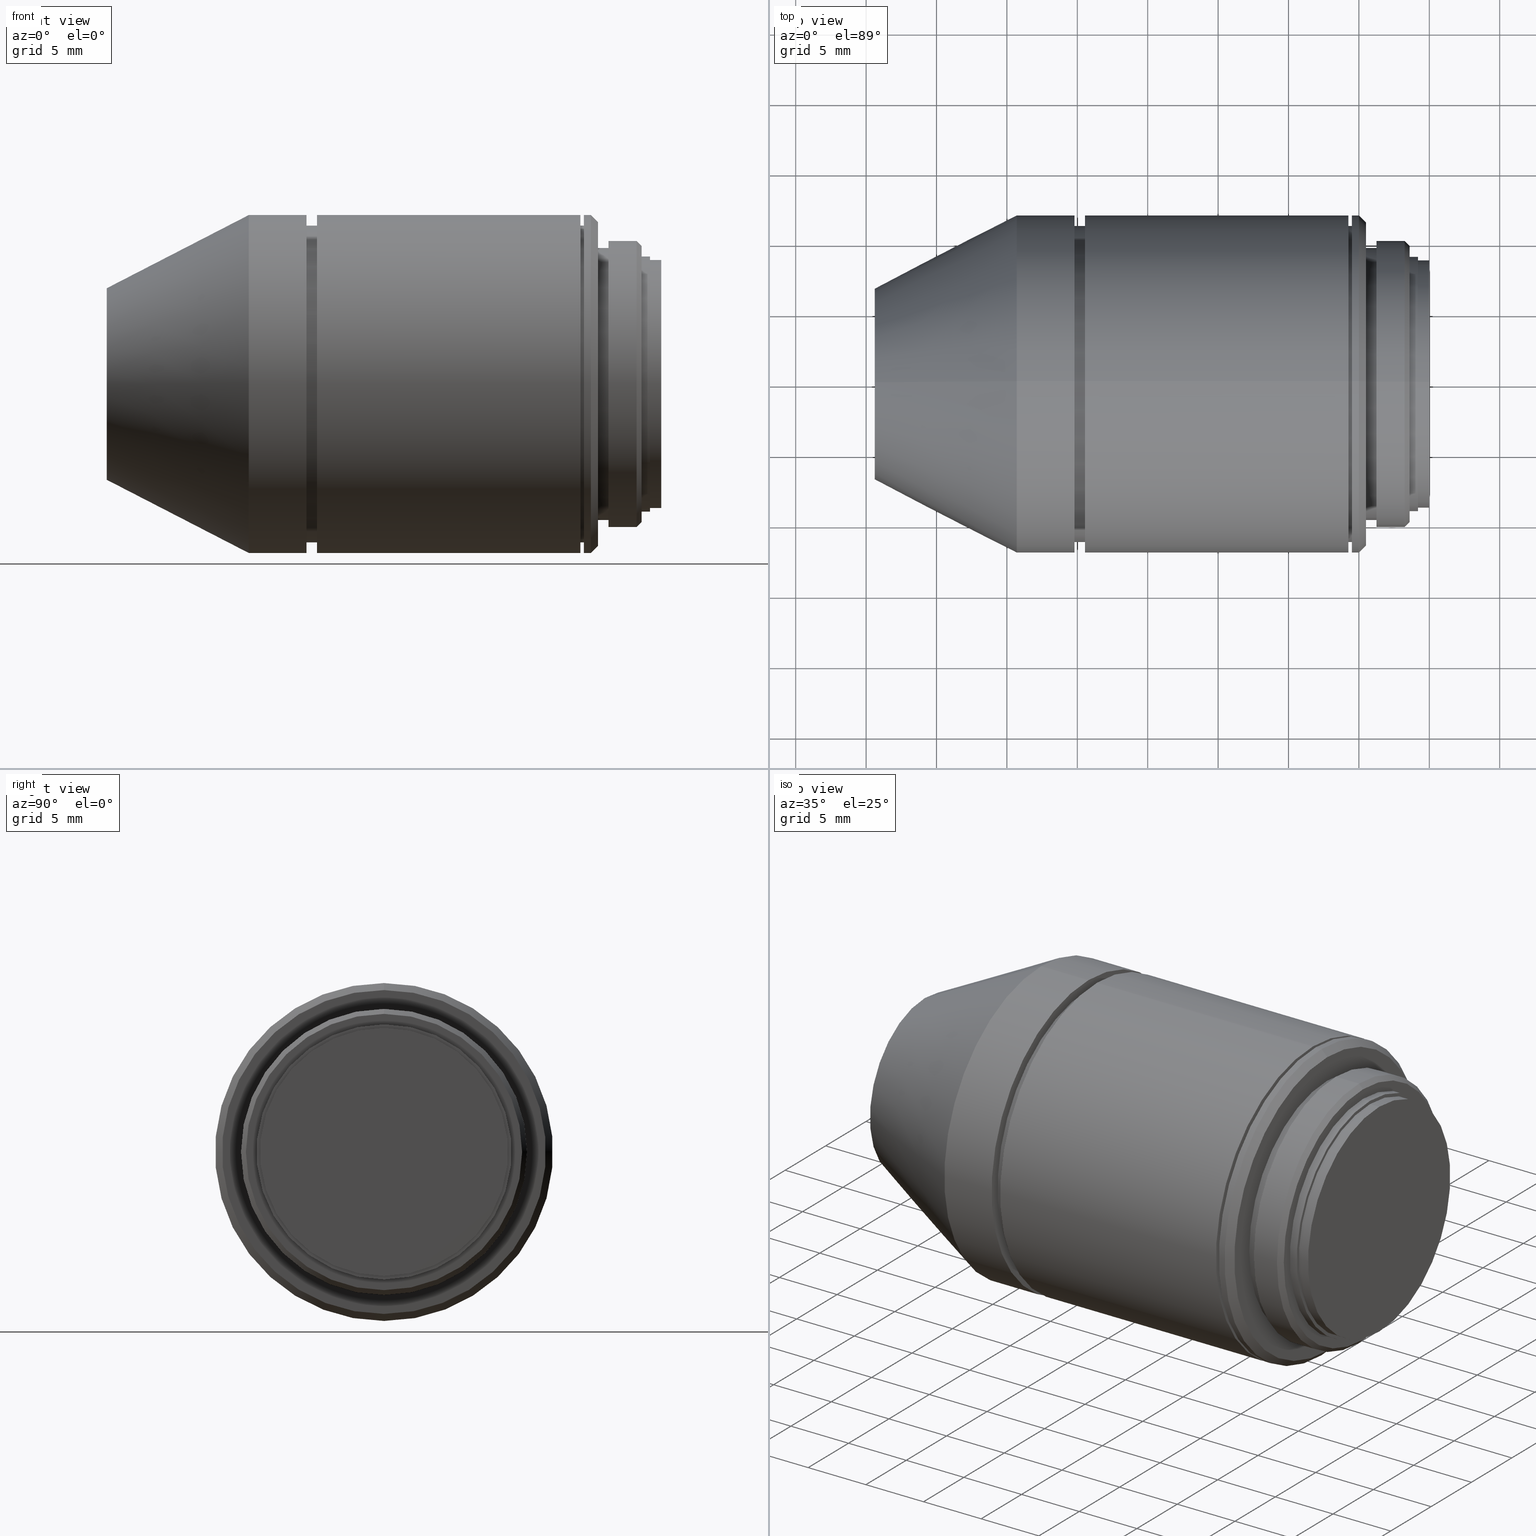
[diagram: canonical four-view strip — front | top / right | iso, engineering-drawing reading convention]
A machine part, canonical four-view strip (front | top / right | iso — engineering-drawing reading convention). The complete STEP part file that produces these views, byte-faithful:
ISO-10303-21;
HEADER;
FILE_DESCRIPTION (( 'STEP AP203' ),
    '1' );
FILE_NAME ('690067.step',
    '2025-04-14T08:44:05',
    ( 'MSI' ),
    ( '' ),
    'SwSTEP 2.0',
    'SolidWorks 2020',
    '' );
FILE_SCHEMA (( 'CONFIG_CONTROL_DESIGN' ));
ENDSEC;

DATA;
#1 = ORIENTED_EDGE ( 'NONE', *, *, #797, .T. ) ;
#2 = CARTESIAN_POINT ( 'NONE',  ( 29.85526709101650056, 1.078913830048817981E-15, 8.810000000000000497 ) ) ;
#3 = DIRECTION ( 'NONE',  ( 1.000000000000000000, 0.000000000000000000, 0.000000000000000000 ) ) ;
#4 = ADVANCED_FACE ( 'NONE', ( #167 ), #688, .T. ) ;
#5 = FACE_OUTER_BOUND ( 'NONE', #668, .T. ) ;
#6 = PERSON ( 'δָ��', 'δָ��', 'δָ��', ('δָ��'), ('δָ��'), ('δָ��') ) ;
#7 = APPROVAL_DATE_TIME ( #829, #457 ) ;
#8 = CARTESIAN_POINT ( 'NONE',  ( -3.750000000000000000, 0.000000000000000000, 0.000000000000000000 ) ) ;
#9 = CARTESIAN_POINT ( 'NONE',  ( -25.19999999999999929, 0.000000000000000000, 0.000000000000000000 ) ) ;
#10 = EDGE_CURVE ( 'NONE', #393, #158, #108, .T. ) ;
#11 = CARTESIAN_POINT ( 'NONE',  ( -39.39000000000000057, -8.480099469911690156E-15, 0.000000000000000000 ) ) ;
#12 = CARTESIAN_POINT ( 'NONE',  ( -3.750000000000000000, 9.660000000000000142, 0.000000000000000000 ) ) ;
#13 = PLANE ( 'NONE',  #571 ) ;
#14 = PLANE ( 'NONE',  #172 ) ;
#15 = CALENDAR_DATE ( 2025, 14, 4 ) ;
#16 = EDGE_CURVE ( 'NONE', #790, #425, #343, .T. ) ;
#17 = AXIS2_PLACEMENT_3D ( 'NONE', #323, #458, #832 ) ;
#18 = DIRECTION ( 'NONE',  ( 1.000000000000000000, 0.000000000000000000, 0.000000000000000000 ) ) ;
#19 = AXIS2_PLACEMENT_3D ( 'NONE', #491, #877, #51 ) ;
#20 = CC_DESIGN_SECURITY_CLASSIFICATION ( #418, ( #809 ) ) ;
#21 = CYLINDRICAL_SURFACE ( 'NONE', #31, 10.16000000000000014 ) ;
#22 = CARTESIAN_POINT ( 'NONE',  ( -5.750000000000000000, 0.000000000000000000, 0.000000000000000000 ) ) ;
#23 = ORIENTED_EDGE ( 'NONE', *, *, #661, .F. ) ;
#24 = PRODUCT_DEFINITION ( 'δ֪', '', #809, #918 ) ;
#25 = FACE_OUTER_BOUND ( 'NONE', #951, .T. ) ;
#26 = EDGE_LOOP ( 'NONE', ( #330, #624, #879, #758 ) ) ;
#27 = FACE_OUTER_BOUND ( 'NONE', #910, .T. ) ;
#28 = CYLINDRICAL_SURFACE ( 'NONE', #554, 11.25000000000000000 ) ;
#29 = EDGE_LOOP ( 'NONE', ( #242, #737, #528, #70 ) ) ;
#30 = VECTOR ( 'NONE', #742, 1000.000000000000000 ) ;
#31 = AXIS2_PLACEMENT_3D ( 'NONE', #687, #755, #905 ) ;
#32 = DIRECTION ( 'NONE',  ( 1.000000000000000000, 0.000000000000000000, 0.000000000000000000 ) ) ;
#33 = AXIS2_PLACEMENT_3D ( 'NONE', #662, #128, #419 ) ;
#34 = FACE_BOUND ( 'NONE', #731, .T. ) ;
#35 = ADVANCED_FACE ( 'NONE', ( #232 ), #757, .T. ) ;
#36 = ORIENTED_EDGE ( 'NONE', *, *, #897, .F. ) ;
#37 = FACE_OUTER_BOUND ( 'NONE', #720, .T. ) ;
#38 = DIRECTION ( 'NONE',  ( 1.000000000000000000, 0.000000000000000000, 0.000000000000000000 ) ) ;
#39 = EDGE_CURVE ( 'NONE', #772, #183, #647, .T. ) ;
#40 = EDGE_LOOP ( 'NONE', ( #213, #838, #278, #545 ) ) ;
#41 = FACE_OUTER_BOUND ( 'NONE', #29, .T. ) ;
#42 = DIRECTION ( 'NONE',  ( 1.000000000000000000, 0.000000000000000000, 0.000000000000000000 ) ) ;
#43 = ORIENTED_EDGE ( 'NONE', *, *, #180, .T. ) ;
#44 = EDGE_CURVE ( 'NONE', #857, #893, #631, .T. ) ;
#45 = VECTOR ( 'NONE', #38, 1000.000000000000000 ) ;
#46 = CARTESIAN_POINT ( 'NONE',  ( -4.500000000000000000, 0.000000000000000000, 11.50000000000000000 ) ) ;
#47 = CIRCLE ( 'NONE', #203, 12.00000000000000000 ) ;
#48 = DIRECTION ( 'NONE',  ( 0.000000000000000000, 0.000000000000000000, -1.000000000000000000 ) ) ;
#49 = LOCAL_TIME ( 16, 44, 5.000000000000000000, #422 ) ;
#50 = VERTEX_POINT ( 'NONE', #320 ) ;
#51 = DIRECTION ( 'NONE',  ( 0.000000000000000000, 0.000000000000000000, -1.000000000000000000 ) ) ;
#52 = DIRECTION ( 'NONE',  ( 0.000000000000000000, 0.000000000000000000, 1.000000000000000000 ) ) ;
#53 = ORIENTED_EDGE ( 'NONE', *, *, #680, .F. ) ;
#54 = CARTESIAN_POINT ( 'NONE',  ( -39.39000000000000057, 0.000000000000000000, -6.799999999999999822 ) ) ;
#55 = CARTESIAN_POINT ( 'NONE',  ( -24.44999999999999929, 1.469576158976823947E-15, 12.00000000000000000 ) ) ;
#56 = ORIENTED_EDGE ( 'NONE', *, *, #448, .T. ) ;
#57 = DIRECTION ( 'NONE',  ( 0.000000000000000000, 0.000000000000000000, 1.000000000000000000 ) ) ;
#58 = DIRECTION ( 'NONE',  ( 0.000000000000000000, 0.000000000000000000, -1.000000000000000000 ) ) ;
#59 = AXIS2_PLACEMENT_3D ( 'NONE', #284, #574, #52 ) ;
#60 = VECTOR ( 'NONE', #376, 1000.000000000000000 ) ;
#61 = EDGE_CURVE ( 'NONE', #217, #307, #540, .T. ) ;
#62 = EDGE_LOOP ( 'NONE', ( #408, #575, #701, #369 ) ) ;
#63 = AXIS2_PLACEMENT_3D ( 'NONE', #820, #898, #86 ) ;
#64 = CARTESIAN_POINT ( 'NONE',  ( 29.85526709101650056, 0.000000000000000000, 0.000000000000000000 ) ) ;
#65 = CARTESIAN_POINT ( 'NONE',  ( 29.85526709101650056, 1.469576158976821975E-15, 12.00000000000000000 ) ) ;
#66 = CARTESIAN_POINT ( 'NONE',  ( -5.750000000000000000, 12.00000000000000000, 0.000000000000000000 ) ) ;
#67 = EDGE_LOOP ( 'NONE', ( #118, #102, #186, #763 ) ) ;
#68 = ADVANCED_FACE ( 'NONE', ( #5 ), #914, .T. ) ;
#69 = APPLICATION_PROTOCOL_DEFINITION ( 'international standard', 'config_control_design', 1994, #342 ) ;
#70 = ORIENTED_EDGE ( 'NONE', *, *, #636, .F. ) ;
#71 = CYLINDRICAL_SURFACE ( 'NONE', #933, 12.00000000000000000 ) ;
#72 = DIRECTION ( 'NONE',  ( 1.000000000000000000, 0.000000000000000000, 0.000000000000000000 ) ) ;
#73 = ORIENTED_EDGE ( 'NONE', *, *, #417, .F. ) ;
#74 = PERSON_AND_ORGANIZATION ( #6, #283 ) ;
#75 = EDGE_LOOP ( 'NONE', ( #480, #850, #415, #208 ) ) ;
#76 = ADVANCED_FACE ( 'NONE', ( #753, #88 ), #14, .T. ) ;
#77 = DIRECTION ( 'NONE',  ( 0.000000000000000000, 0.000000000000000000, -1.000000000000000000 ) ) ;
#78 = DIRECTION ( 'NONE',  ( 0.000000000000000000, 0.000000000000000000, -1.000000000000000000 ) ) ;
#79 = AXIS2_PLACEMENT_3D ( 'NONE', #673, #600, #459 ) ;
#80 = AXIS2_PLACEMENT_3D ( 'NONE', #427, #276, #812 ) ;
#81 = ORIENTED_EDGE ( 'NONE', *, *, #139, .F. ) ;
#82 = CIRCLE ( 'NONE', #916, 11.25000000000000000 ) ;
#83 = DIRECTION ( 'NONE',  ( 0.8888984662216531385, 0.000000000000000000, -0.4581042640587320580 ) ) ;
#84 = CARTESIAN_POINT ( 'NONE',  ( 29.85526709101650056, 0.000000000000000000, 0.000000000000000000 ) ) ;
#85 = DIRECTION ( 'NONE',  ( 0.000000000000000000, 0.000000000000000000, -1.000000000000000000 ) ) ;
#86 = DIRECTION ( 'NONE',  ( 0.000000000000000000, 0.000000000000000000, -1.000000000000000000 ) ) ;
#87 = CARTESIAN_POINT ( 'NONE',  ( 29.85526709101650056, 1.469576158976823947E-15, 12.00000000000000000 ) ) ;
#88 = FACE_BOUND ( 'NONE', #938, .T. ) ;
#89 = CARTESIAN_POINT ( 'NONE',  ( -0.8000000000000000444, 0.000000000000000000, -8.810000000000000497 ) ) ;
#90 = CARTESIAN_POINT ( 'NONE',  ( -5.000000000000000000, 0.000000000000000000, -12.00000000000000000 ) ) ;
#91 = DIRECTION ( 'NONE',  ( 1.000000000000000000, 0.000000000000000000, 0.000000000000000000 ) ) ;
#92 = ADVANCED_FACE ( 'NONE', ( #336, #34 ), #846, .T. ) ;
#93 = COORDINATED_UNIVERSAL_TIME_OFFSET ( 8, 0, .AHEAD. ) ;
#94 = ORIENTED_EDGE ( 'NONE', *, *, #636, .T. ) ;
#95 = VECTOR ( 'NONE', #874, 1000.000000000000000 ) ;
#96 = CIRCLE ( 'NONE', #481, 9.060000000000000497 ) ;
#97 = AXIS2_PLACEMENT_3D ( 'NONE', #8, #160, #830 ) ;
#98 = DIRECTION ( 'NONE',  ( 0.000000000000000000, 0.000000000000000000, -1.000000000000000000 ) ) ;
#99 = ORIENTED_EDGE ( 'NONE', *, *, #793, .T. ) ;
#100 = EDGE_LOOP ( 'NONE', ( #36, #350, #743, #295 ) ) ;
#101 = DIRECTION ( 'NONE',  ( 0.000000000000000000, 0.000000000000000000, -1.000000000000000000 ) ) ;
#102 = ORIENTED_EDGE ( 'NONE', *, *, #112, .T. ) ;
#103 = ORIENTED_EDGE ( 'NONE', *, *, #477, .F. ) ;
#104 = ADVANCED_FACE ( 'NONE', ( #692 ), #120, .T. ) ;
#105 = CARTESIAN_POINT ( 'NONE',  ( 29.85526709101650056, 0.000000000000000000, 0.000000000000000000 ) ) ;
#106 = DIRECTION ( 'NONE',  ( 1.000000000000000000, 0.000000000000000000, 0.000000000000000000 ) ) ;
#107 = EDGE_LOOP ( 'NONE', ( #1, #293 ) ) ;
#108 = CIRCLE ( 'NONE', #187, 12.00000000000000000 ) ;
#109 = VECTOR ( 'NONE', #795, 1000.000000000000114 ) ;
#110 = DIRECTION ( 'NONE',  ( 0.000000000000000000, 0.000000000000000000, -1.000000000000000000 ) ) ;
#111 = AXIS2_PLACEMENT_3D ( 'NONE', #199, #123, #573 ) ;
#112 = EDGE_CURVE ( 'NONE', #50, #772, #849, .T. ) ;
#113 = PLANE ( 'NONE',  #708 ) ;
#114 = ORIENTED_EDGE ( 'NONE', *, *, #386, .F. ) ;
#115 = DIRECTION ( 'NONE',  ( -1.000000000000000000, 0.000000000000000000, 0.000000000000000000 ) ) ;
#116 = LINE ( 'NONE', #630, #122 ) ;
#117 = EDGE_CURVE ( 'NONE', #767, #366, #116, .T. ) ;
#118 = ORIENTED_EDGE ( 'NONE', *, *, #214, .T. ) ;
#119 = CARTESIAN_POINT ( 'NONE',  ( 29.85526709101650056, 0.000000000000000000, 0.000000000000000000 ) ) ;
#120 = CYLINDRICAL_SURFACE ( 'NONE', #602, 12.00000000000000000 ) ;
#121 = ORIENTED_EDGE ( 'NONE', *, *, #256, .T. ) ;
#122 = VECTOR ( 'NONE', #626, 1000.000000000000000 ) ;
#123 = DIRECTION ( 'NONE',  ( -1.000000000000000000, 0.000000000000000000, 0.000000000000000000 ) ) ;
#124 = CIRCLE ( 'NONE', #252, 9.809999999999998721 ) ;
#125 = PLANE ( 'NONE',  #80 ) ;
#126 = EDGE_LOOP ( 'NONE', ( #103, #152 ) ) ;
#127 = PERSON_AND_ORGANIZATION ( #6, #283 ) ;
#128 = DIRECTION ( 'NONE',  ( 1.000000000000000000, 0.000000000000000000, 0.000000000000000000 ) ) ;
#129 = CARTESIAN_POINT ( 'NONE',  ( 29.85526709101650056, 0.000000000000000000, -12.00000000000000000 ) ) ;
#130 = ORIENTED_EDGE ( 'NONE', *, *, #646, .T. ) ;
#131 = CALENDAR_DATE ( 2025, 14, 4 ) ;
#132 = CARTESIAN_POINT ( 'NONE',  ( -1.750000000000000000, 0.000000000000000000, 0.000000000000000000 ) ) ;
#133 = EDGE_CURVE ( 'NONE', #341, #842, #188, .T. ) ;
#134 = FACE_OUTER_BOUND ( 'NONE', #100, .T. ) ;
#135 = ORIENTED_EDGE ( 'NONE', *, *, #686, .F. ) ;
#136 =( LENGTH_UNIT ( ) NAMED_UNIT ( * ) SI_UNIT ( .MILLI., .METRE. ) );
#137 = LINE ( 'NONE', #431, #841 ) ;
#138 = DIRECTION ( 'NONE',  ( 1.000000000000000000, 0.000000000000000000, 0.000000000000000000 ) ) ;
#139 = EDGE_CURVE ( 'NONE', #934, #257, #694, .T. ) ;
#140 = CIRCLE ( 'NONE', #788, 9.660000000000000142 ) ;
#141 = ORIENTED_EDGE ( 'NONE', *, *, #546, .F. ) ;
#142 = CIRCLE ( 'NONE', #63, 11.25000000000000000 ) ;
#143 = ORIENTED_EDGE ( 'NONE', *, *, #690, .F. ) ;
#144 = CARTESIAN_POINT ( 'NONE',  ( -25.19999999999999929, 0.000000000000000000, 0.000000000000000000 ) ) ;
#145 = DIRECTION ( 'NONE',  ( -1.000000000000000000, 0.000000000000000000, 0.000000000000000000 ) ) ;
#146 = ORIENTED_EDGE ( 'NONE', *, *, #311, .T. ) ;
#147 = ADVANCED_FACE ( 'NONE', ( #333 ), #28, .T. ) ;
#148 = DATE_AND_TIME ( #131, #856 ) ;
#149 = VERTEX_POINT ( 'NONE', #196 ) ;
#150 = CARTESIAN_POINT ( 'NONE',  ( -1.399999999999999911, 9.809999999999998721, 0.000000000000000000 ) ) ;
#151 = CYLINDRICAL_SURFACE ( 'NONE', #869, 12.00000000000000000 ) ;
#152 = ORIENTED_EDGE ( 'NONE', *, *, #646, .F. ) ;
#153 = ADVANCED_FACE ( 'NONE', ( #475 ), #622, .T. ) ;
#154 = LINE ( 'NONE', #388, #948 ) ;
#155 = DIRECTION ( 'NONE',  ( 1.000000000000000000, 0.000000000000000000, 0.000000000000000000 ) ) ;
#156 = CLOSED_SHELL ( 'NONE', ( #170, #618, #610, #581, #484, #352, #104, #322, #739, #153, #824, #953, #35, #68, #395, #76, #147, #805, #4, #317, #327, #166, #489, #297, #92, #606, #941, #442, #780, #907, #591, #435, #957, #238 ) ) ;
#157 = VECTOR ( 'NONE', #273, 1000.000000000000000 ) ;
#158 = VERTEX_POINT ( 'NONE', #863 ) ;
#159 = CIRCLE ( 'NONE', #695, 10.16000000000000014 ) ;
#160 = DIRECTION ( 'NONE',  ( 1.000000000000000000, 0.000000000000000000, 0.000000000000000000 ) ) ;
#161 = CARTESIAN_POINT ( 'NONE',  ( -1.399999999999999911, 0.000000000000000000, 9.809999999999998721 ) ) ;
#162 = ORIENTED_EDGE ( 'NONE', *, *, #859, .T. ) ;
#163 = SHAPE_DEFINITION_REPRESENTATION ( #567, #804 ) ;
#164 = FACE_BOUND ( 'NONE', #861, .T. ) ;
#165 = DIRECTION ( 'NONE',  ( 0.000000000000000000, 1.000000000000000000, 0.000000000000000000 ) ) ;
#166 = ADVANCED_FACE ( 'NONE', ( #775, #407 ), #113, .T. ) ;
#167 = FACE_OUTER_BOUND ( 'NONE', #493, .T. ) ;
#168 = ORIENTED_EDGE ( 'NONE', *, *, #843, .T. ) ;
#169 = CARTESIAN_POINT ( 'NONE',  ( -29.30000000000000071, 0.000000000000000000, 0.000000000000000000 ) ) ;
#170 = ADVANCED_FACE ( 'NONE', ( #922 ), #488, .T. ) ;
#171 = ORIENTED_EDGE ( 'NONE', *, *, #680, .T. ) ;
#172 = AXIS2_PLACEMENT_3D ( 'NONE', #608, #245, #696 ) ;
#173 = AXIS2_PLACEMENT_3D ( 'NONE', #955, #498, #507 ) ;
#174 = CIRCLE ( 'NONE', #709, 10.16000000000000014 ) ;
#175 = CIRCLE ( 'NONE', #404, 10.16000000000000014 ) ;
#176 = AXIS2_PLACEMENT_3D ( 'NONE', #370, #505, #568 ) ;
#177 = DIRECTION ( 'NONE',  ( 1.000000000000000000, 0.000000000000000000, 0.000000000000000000 ) ) ;
#178 = VERTEX_POINT ( 'NONE', #617 ) ;
#179 = ORIENTED_EDGE ( 'NONE', *, *, #515, .T. ) ;
#180 = EDGE_CURVE ( 'NONE', #307, #421, #140, .T. ) ;
#181 = DIRECTION ( 'NONE',  ( 1.000000000000000000, 0.000000000000000000, 0.000000000000000000 ) ) ;
#182 = DIRECTION ( 'NONE',  ( -1.000000000000000000, 0.000000000000000000, 0.000000000000000000 ) ) ;
#183 = VERTEX_POINT ( 'NONE', #349 ) ;
#184 = CYLINDRICAL_SURFACE ( 'NONE', #205, 9.660000000000000142 ) ;
#185 = CARTESIAN_POINT ( 'NONE',  ( 29.85526709101650056, 0.000000000000000000, 0.000000000000000000 ) ) ;
#186 = ORIENTED_EDGE ( 'NONE', *, *, #797, .F. ) ;
#187 = AXIS2_PLACEMENT_3D ( 'NONE', #22, #454, #462 ) ;
#188 = CIRCLE ( 'NONE', #314, 8.810000000000000497 ) ;
#189 = AXIS2_PLACEMENT_3D ( 'NONE', #190, #115, #474 ) ;
#190 = CARTESIAN_POINT ( 'NONE',  ( -1.399999999999999911, 0.000000000000000000, 0.000000000000000000 ) ) ;
#191 = VECTOR ( 'NONE', #501, 1000.000000000000000 ) ;
#192 = EDGE_CURVE ( 'NONE', #535, #542, #700, .T. ) ;
#193 = CARTESIAN_POINT ( 'NONE',  ( -24.44999999999999929, 0.000000000000000000, 0.000000000000000000 ) ) ;
#194 = EDGE_LOOP ( 'NONE', ( #508, #537 ) ) ;
#195 = CARTESIAN_POINT ( 'NONE',  ( -25.19999999999999929, 0.000000000000000000, -12.00000000000000000 ) ) ;
#196 = CARTESIAN_POINT ( 'NONE',  ( -0.8000000000000000444, 0.000000000000000000, -9.060000000000000497 ) ) ;
#197 = CC_DESIGN_DATE_AND_TIME_ASSIGNMENT ( #872, #209, ( #418 ) ) ;
#198 = ORIENTED_EDGE ( 'NONE', *, *, #671, .T. ) ;
#199 = CARTESIAN_POINT ( 'NONE',  ( -24.44999999999999929, 11.25000000000000000, 0.000000000000000000 ) ) ;
#200 = CARTESIAN_POINT ( 'NONE',  ( 29.85526709101650056, 0.000000000000000000, 0.000000000000000000 ) ) ;
#201 = ORIENTED_EDGE ( 'NONE', *, *, #831, .T. ) ;
#202 = APPLICATION_PROTOCOL_DEFINITION ( 'international standard', 'config_control_design', 1994, #536 ) ;
#203 = AXIS2_PLACEMENT_3D ( 'NONE', #420, #714, #645 ) ;
#204 = CARTESIAN_POINT ( 'NONE',  ( 29.85526709101650056, 0.000000000000000000, -9.660000000000000142 ) ) ;
#205 = AXIS2_PLACEMENT_3D ( 'NONE', #706, #32, #339 ) ;
#206 = VECTOR ( 'NONE', #601, 1000.000000000000000 ) ;
#207 = CARTESIAN_POINT ( 'NONE',  ( -5.500000000000000000, 0.000000000000000000, -12.00000000000000000 ) ) ;
#208 = ORIENTED_EDGE ( 'NONE', *, *, #851, .F. ) ;
#209 = DATE_TIME_ROLE ( 'classification_date' ) ;
#210 = EDGE_CURVE ( 'NONE', #285, #920, #649, .T. ) ;
#211 = CARTESIAN_POINT ( 'NONE',  ( -5.500000000000000000, 0.000000000000000000, 0.000000000000000000 ) ) ;
#212 = CARTESIAN_POINT ( 'NONE',  ( -1.399999999999999911, 1.109530000027499993E-15, 9.060000000000000497 ) ) ;
#213 = ORIENTED_EDGE ( 'NONE', *, *, #61, .F. ) ;
#214 = EDGE_CURVE ( 'NONE', #520, #50, #853, .T. ) ;
#215 = DIRECTION ( 'NONE',  ( 0.000000000000000000, 0.000000000000000000, -1.000000000000000000 ) ) ;
#216 = CYLINDRICAL_SURFACE ( 'NONE', #173, 11.25000000000000000 ) ;
#217 = VERTEX_POINT ( 'NONE', #400 ) ;
#218 = PERSON_AND_ORGANIZATION_ROLE ( 'design_owner' ) ;
#219 = CARTESIAN_POINT ( 'NONE',  ( 29.85526709101650056, 1.109530000027499993E-15, 9.060000000000000497 ) ) ;
#220 = AXIS2_PLACEMENT_3D ( 'NONE', #310, #248, #909 ) ;
#221 = CARTESIAN_POINT ( 'NONE',  ( -1.750000000000000000, 0.000000000000000000, 0.000000000000000000 ) ) ;
#222 = CIRCLE ( 'NONE', #466, 11.50000000000000000 ) ;
#223 = EDGE_CURVE ( 'NONE', #425, #790, #264, .T. ) ;
#224 = CIRCLE ( 'NONE', #265, 9.660000000000000142 ) ;
#225 = ORIENTED_EDGE ( 'NONE', *, *, #936, .F. ) ;
#226 = LOCAL_TIME ( 16, 44, 5.000000000000000000, #294 ) ;
#227 = DIRECTION ( 'NONE',  ( 0.000000000000000000, 0.000000000000000000, 1.000000000000000000 ) ) ;
#228 = DIRECTION ( 'NONE',  ( 1.000000000000000000, 0.000000000000000000, 0.000000000000000000 ) ) ;
#229 = ORIENTED_EDGE ( 'NONE', *, *, #752, .F. ) ;
#230 = PLANE ( 'NONE',  #604 ) ;
#231 = CYLINDRICAL_SURFACE ( 'NONE', #17, 12.00000000000000000 ) ;
#232 = FACE_OUTER_BOUND ( 'NONE', #126, .T. ) ;
#233 = LINE ( 'NONE', #677, #302 ) ;
#234 = CARTESIAN_POINT ( 'NONE',  ( -39.39000000000000057, 0.000000000000000000, 0.000000000000000000 ) ) ;
#235 = AXIS2_PLACEMENT_3D ( 'NONE', #66, #590, #657 ) ;
#236 = ORIENTED_EDGE ( 'NONE', *, *, #277, .F. ) ;
#237 =( GEOMETRIC_REPRESENTATION_CONTEXT ( 3 ) GLOBAL_UNCERTAINTY_ASSIGNED_CONTEXT ( ( #552 ) ) GLOBAL_UNIT_ASSIGNED_CONTEXT ( ( #136, #726, #876 ) ) REPRESENTATION_CONTEXT ( 'NONE', 'WORKASPACE' ) );
#238 = ADVANCED_FACE ( 'NONE', ( #292 ), #125, .T. ) ;
#239 = DIRECTION ( 'NONE',  ( -1.000000000000000000, 0.000000000000000000, 0.000000000000000000 ) ) ;
#240 = FACE_OUTER_BOUND ( 'NONE', #469, .T. ) ;
#241 = ORIENTED_EDGE ( 'NONE', *, *, #448, .F. ) ;
#242 = ORIENTED_EDGE ( 'NONE', *, *, #936, .T. ) ;
#243 = EDGE_CURVE ( 'NONE', #892, #740, #391, .T. ) ;
#244 = CARTESIAN_POINT ( 'NONE',  ( -0.8000000000000000444, 0.000000000000000000, 0.000000000000000000 ) ) ;
#245 = DIRECTION ( 'NONE',  ( 1.000000000000000000, 0.000000000000000000, 0.000000000000000000 ) ) ;
#246 = EDGE_LOOP ( 'NONE', ( #362, #43 ) ) ;
#247 = FACE_BOUND ( 'NONE', #664, .T. ) ;
#248 = DIRECTION ( 'NONE',  ( 1.000000000000000000, 0.000000000000000000, 0.000000000000000000 ) ) ;
#249 = EDGE_CURVE ( 'NONE', #833, #178, #430, .T. ) ;
#250 = VECTOR ( 'NONE', #533, 1000.000000000000000 ) ;
#251 = ORIENTED_EDGE ( 'NONE', *, *, #550, .F. ) ;
#252 = AXIS2_PLACEMENT_3D ( 'NONE', #845, #181, #652 ) ;
#253 = VECTOR ( 'NONE', #881, 1000.000000000000000 ) ;
#254 = CARTESIAN_POINT ( 'NONE',  ( -4.500000000000000000, 0.000000000000000000, 0.000000000000000000 ) ) ;
#255 = DIRECTION ( 'NONE',  ( 1.000000000000000000, 0.000000000000000000, 0.000000000000000000 ) ) ;
#256 = EDGE_CURVE ( 'NONE', #520, #183, #945, .T. ) ;
#257 = VERTEX_POINT ( 'NONE', #55 ) ;
#258 = LINE ( 'NONE', #413, #744 ) ;
#259 = CARTESIAN_POINT ( 'NONE',  ( -4.500000000000000000, 11.50000000000000000, 0.000000000000000000 ) ) ;
#260 = ORIENTED_EDGE ( 'NONE', *, *, #515, .F. ) ;
#261 = CARTESIAN_POINT ( 'NONE',  ( -1.750000000000000000, 1.244241147933709878E-15, 10.16000000000000014 ) ) ;
#262 = DIRECTION ( 'NONE',  ( 0.000000000000000000, 0.000000000000000000, -1.000000000000000000 ) ) ;
#263 = ORIENTED_EDGE ( 'NONE', *, *, #705, .T. ) ;
#264 = CIRCLE ( 'NONE', #807, 12.00000000000000000 ) ;
#265 = AXIS2_PLACEMENT_3D ( 'NONE', #254, #625, #409 ) ;
#266 = EDGE_CURVE ( 'NONE', #366, #549, #345, .T. ) ;
#267 = FACE_OUTER_BOUND ( 'NONE', #40, .T. ) ;
#268 = CIRCLE ( 'NONE', #826, 8.810000000000000497 ) ;
#269 = CC_DESIGN_APPROVAL ( #457, ( #418 ) ) ;
#270 = DIRECTION ( 'NONE',  ( 0.000000000000000000, 1.000000000000000000, 0.000000000000000000 ) ) ;
#271 = ORIENTED_EDGE ( 'NONE', *, *, #411, .T. ) ;
#272 = DIRECTION ( 'NONE',  ( 0.000000000000000000, 0.000000000000000000, -1.000000000000000000 ) ) ;
#273 = DIRECTION ( 'NONE',  ( 1.000000000000000000, 0.000000000000000000, 0.000000000000000000 ) ) ;
#274 = ORIENTED_EDGE ( 'NONE', *, *, #494, .F. ) ;
#275 = PLANE ( 'NONE',  #111 ) ;
#276 = DIRECTION ( 'NONE',  ( 1.000000000000000000, 0.000000000000000000, 0.000000000000000000 ) ) ;
#277 = EDGE_CURVE ( 'NONE', #257, #934, #915, .T. ) ;
#278 = ORIENTED_EDGE ( 'NONE', *, *, #732, .T. ) ;
#279 = MECHANICAL_CONTEXT ( 'NONE', #536, 'mechanical' ) ;
#280 = AXIS2_PLACEMENT_3D ( 'NONE', #749, #91, #612 ) ;
#281 = AXIS2_PLACEMENT_3D ( 'NONE', #221, #228, #361 ) ;
#282 = DIRECTION ( 'NONE',  ( 0.000000000000000000, 0.000000000000000000, -1.000000000000000000 ) ) ;
#283 = ORGANIZATION ( 'δָ��', 'δָ��', '' ) ;
#284 = CARTESIAN_POINT ( 'NONE',  ( -4.500000000000000000, 0.000000000000000000, 0.000000000000000000 ) ) ;
#285 = VERTEX_POINT ( 'NONE', #212 ) ;
#286 = APPROVAL ( #887, 'δָ��' ) ;
#287 = DIRECTION ( 'NONE',  ( 1.000000000000000000, 0.000000000000000000, 0.000000000000000000 ) ) ;
#288 = FACE_OUTER_BOUND ( 'NONE', #906, .T. ) ;
#289 = ORIENTED_EDGE ( 'NONE', *, *, #843, .F. ) ;
#290 = EDGE_CURVE ( 'NONE', #833, #609, #736, .T. ) ;
#291 = LINE ( 'NONE', #219, #253 ) ;
#292 = FACE_OUTER_BOUND ( 'NONE', #958, .T. ) ;
#293 = ORIENTED_EDGE ( 'NONE', *, *, #39, .T. ) ;
#294 = COORDINATED_UNIVERSAL_TIME_OFFSET ( 8, 0, .AHEAD. ) ;
#295 = ORIENTED_EDGE ( 'NONE', *, *, #16, .T. ) ;
#296 = DIRECTION ( 'NONE',  ( 1.000000000000000000, 0.000000000000000000, 0.000000000000000000 ) ) ;
#297 = ADVANCED_FACE ( 'NONE', ( #134 ), #586, .T. ) ;
#298 = AXIS2_PLACEMENT_3D ( 'NONE', #410, #703, #48 ) ;
#299 = DIRECTION ( 'NONE',  ( 1.000000000000000000, 0.000000000000000000, 0.000000000000000000 ) ) ;
#300 = CC_DESIGN_APPROVAL ( #928, ( #809 ) ) ;
#301 = ORIENTED_EDGE ( 'NONE', *, *, #382, .F. ) ;
#302 = VECTOR ( 'NONE', #318, 1000.000000000000114 ) ;
#303 = PERSON_AND_ORGANIZATION_ROLE ( 'creator' ) ;
#304 = VERTEX_POINT ( 'NONE', #207 ) ;
#305 = CARTESIAN_POINT ( 'NONE',  ( 0.000000000000000000, 1.078913830048817981E-15, 8.810000000000000497 ) ) ;
#306 = DIRECTION ( 'NONE',  ( 0.000000000000000000, 0.000000000000000000, -1.000000000000000000 ) ) ;
#307 = VERTEX_POINT ( 'NONE', #722 ) ;
#308 = CARTESIAN_POINT ( 'NONE',  ( -1.399999999999999911, 0.000000000000000000, 0.000000000000000000 ) ) ;
#309 = LINE ( 'NONE', #760, #60 ) ;
#310 = CARTESIAN_POINT ( 'NONE',  ( -1.399999999999999911, 0.000000000000000000, 0.000000000000000000 ) ) ;
#311 = EDGE_CURVE ( 'NONE', #734, #871, #222, .T. ) ;
#312 = CARTESIAN_POINT ( 'NONE',  ( -5.500000000000000000, 1.377727649040770022E-15, 11.25000000000000000 ) ) ;
#313 = CARTESIAN_POINT ( 'NONE',  ( -3.750000000000000000, 0.000000000000000000, 0.000000000000000000 ) ) ;
#314 = AXIS2_PLACEMENT_3D ( 'NONE', #479, #932, #553 ) ;
#315 = DIRECTION ( 'NONE',  ( 1.000000000000000000, 0.000000000000000000, 0.000000000000000000 ) ) ;
#316 = CIRCLE ( 'NONE', #712, 11.25000000000000000 ) ;
#317 = ADVANCED_FACE ( 'NONE', ( #356, #730 ), #440, .T. ) ;
#318 = DIRECTION ( 'NONE',  ( -0.7071067811865474617, 8.659560562354921765E-17, -0.7071067811865474617 ) ) ;
#319 = DIRECTION ( 'NONE',  ( 1.000000000000000000, 0.000000000000000000, 0.000000000000000000 ) ) ;
#320 = CARTESIAN_POINT ( 'NONE',  ( -25.19999999999999929, 1.377727649040771994E-15, 11.25000000000000000 ) ) ;
#321 = ORIENTED_EDGE ( 'NONE', *, *, #192, .F. ) ;
#322 = ADVANCED_FACE ( 'NONE', ( #288 ), #371, .T. ) ;
#323 = CARTESIAN_POINT ( 'NONE',  ( 29.85526709101650056, 0.000000000000000000, 0.000000000000000000 ) ) ;
#324 = DIRECTION ( 'NONE',  ( 0.000000000000000000, 0.000000000000000000, -1.000000000000000000 ) ) ;
#325 = ORIENTED_EDGE ( 'NONE', *, *, #311, .F. ) ;
#326 = CYLINDRICAL_SURFACE ( 'NONE', #527, 9.060000000000000497 ) ;
#327 = ADVANCED_FACE ( 'NONE', ( #891 ), #216, .T. ) ;
#328 = DIRECTION ( 'NONE',  ( 0.000000000000000000, 0.000000000000000000, -1.000000000000000000 ) ) ;
#329 = CIRCLE ( 'NONE', #450, 12.00000000000000000 ) ;
#330 = ORIENTED_EDGE ( 'NONE', *, *, #882, .F. ) ;
#331 = CIRCLE ( 'NONE', #556, 9.660000000000000142 ) ;
#332 = LINE ( 'NONE', #629, #761 ) ;
#333 = FACE_OUTER_BOUND ( 'NONE', #796, .T. ) ;
#334 = ORIENTED_EDGE ( 'NONE', *, *, #546, .T. ) ;
#335 = CYLINDRICAL_SURFACE ( 'NONE', #616, 10.16000000000000014 ) ;
#336 = FACE_OUTER_BOUND ( 'NONE', #372, .T. ) ;
#337 = ORIENTED_EDGE ( 'NONE', *, *, #243, .T. ) ;
#338 = EDGE_CURVE ( 'NONE', #562, #178, #519, .T. ) ;
#339 = DIRECTION ( 'NONE',  ( 0.000000000000000000, 0.000000000000000000, -1.000000000000000000 ) ) ;
#340 = DIRECTION ( 'NONE',  ( 0.000000000000000000, 0.000000000000000000, -1.000000000000000000 ) ) ;
#341 = VERTEX_POINT ( 'NONE', #353 ) ;
#342 = APPLICATION_CONTEXT ( 'configuration controlled 3d designs of mechanical parts and assemblies' ) ;
#343 = CIRCLE ( 'NONE', #724, 12.00000000000000000 ) ;
#344 = EDGE_CURVE ( 'NONE', #158, #393, #47, .T. ) ;
#345 = CIRCLE ( 'NONE', #281, 10.16000000000000014 ) ;
#346 = CIRCLE ( 'NONE', #839, 6.799999999999999822 ) ;
#347 = LINE ( 'NONE', #935, #888 ) ;
#348 = AXIS2_PLACEMENT_3D ( 'NONE', #12, #239, #227 ) ;
#349 = CARTESIAN_POINT ( 'NONE',  ( -24.44999999999999929, 0.000000000000000000, -11.25000000000000000 ) ) ;
#350 = ORIENTED_EDGE ( 'NONE', *, *, #705, .F. ) ;
#351 = DIRECTION ( 'NONE',  ( -1.000000000000000000, 0.000000000000000000, 0.000000000000000000 ) ) ;
#352 = ADVANCED_FACE ( 'NONE', ( #719 ), #774, .T. ) ;
#353 = CARTESIAN_POINT ( 'NONE',  ( -0.8000000000000000444, 1.078913830048817981E-15, 8.810000000000000497 ) ) ;
#354 = ORIENTED_EDGE ( 'NONE', *, *, #784, .F. ) ;
#355 = CARTESIAN_POINT ( 'NONE',  ( 0.000000000000000000, 0.000000000000000000, -8.810000000000000497 ) ) ;
#356 = FACE_OUTER_BOUND ( 'NONE', #679, .T. ) ;
#357 = ORIENTED_EDGE ( 'NONE', *, *, #290, .T. ) ;
#358 = DIRECTION ( 'NONE',  ( 1.000000000000000000, 0.000000000000000000, 0.000000000000000000 ) ) ;
#359 = AXIS2_PLACEMENT_3D ( 'NONE', #583, #883, #803 ) ;
#360 = DIRECTION ( 'NONE',  ( 1.000000000000000000, 0.000000000000000000, 0.000000000000000000 ) ) ;
#361 = DIRECTION ( 'NONE',  ( 0.000000000000000000, 0.000000000000000000, -1.000000000000000000 ) ) ;
#362 = ORIENTED_EDGE ( 'NONE', *, *, #924, .T. ) ;
#363 = APPROVAL_DATE_TIME ( #665, #286 ) ;
#364 = CARTESIAN_POINT ( 'NONE',  ( -29.30000000000000071, 0.000000000000000000, -12.00000000000000000 ) ) ;
#365 = DIRECTION ( 'NONE',  ( 1.000000000000000000, 0.000000000000000000, 0.000000000000000000 ) ) ;
#366 = VERTEX_POINT ( 'NONE', #641 ) ;
#367 = APPROVAL_ROLE ( '' ) ;
#368 = CC_DESIGN_PERSON_AND_ORGANIZATION_ASSIGNMENT ( #127, #716, ( #418 ) ) ;
#369 = ORIENTED_EDGE ( 'NONE', *, *, #506, .F. ) ;
#370 = CARTESIAN_POINT ( 'NONE',  ( -5.500000000000000000, 0.000000000000000000, 0.000000000000000000 ) ) ;
#371 = CYLINDRICAL_SURFACE ( 'NONE', #666, 11.25000000000000000 ) ;
#372 = EDGE_LOOP ( 'NONE', ( #263, #146 ) ) ;
#373 = EDGE_LOOP ( 'NONE', ( #73, #271, #357, #383 ) ) ;
#374 = FACE_OUTER_BOUND ( 'NONE', #26, .T. ) ;
#375 = VECTOR ( 'NONE', #821, 1000.000000000000114 ) ;
#376 = DIRECTION ( 'NONE',  ( 1.000000000000000000, 0.000000000000000000, 0.000000000000000000 ) ) ;
#377 = AXIS2_PLACEMENT_3D ( 'NONE', #713, #563, #272 ) ;
#378 = CONICAL_SURFACE ( 'NONE', #651, 12.00000000000000000, 0.4758613436369093508 ) ;
#379 = ORIENTED_EDGE ( 'NONE', *, *, #494, .T. ) ;
#380 = CARTESIAN_POINT ( 'NONE',  ( -1.399999999999999911, 0.000000000000000000, 9.809999999999998721 ) ) ;
#381 = CARTESIAN_POINT ( 'NONE',  ( -5.750000000000000000, 1.469576158976821975E-15, 12.00000000000000000 ) ) ;
#382 = EDGE_CURVE ( 'NONE', #875, #549, #940, .T. ) ;
#383 = ORIENTED_EDGE ( 'NONE', *, *, #723, .F. ) ;
#384 = PLANE ( 'NONE',  #348 ) ;
#385 = CARTESIAN_POINT ( 'NONE',  ( 29.85526709101650056, 0.000000000000000000, 0.000000000000000000 ) ) ;
#386 = EDGE_CURVE ( 'NONE', #857, #549, #911, .T. ) ;
#387 = CARTESIAN_POINT ( 'NONE',  ( 29.85526709101650056, 1.183008807976344079E-15, 9.660000000000000142 ) ) ;
#388 = CARTESIAN_POINT ( 'NONE',  ( 29.85526709101650056, 0.000000000000000000, -12.00000000000000000 ) ) ;
#389 = CARTESIAN_POINT ( 'NONE',  ( -0.8000000000000000444, 9.060000000000000497, 0.000000000000000000 ) ) ;
#390 = AXIS2_PLACEMENT_3D ( 'NONE', #684, #315, #85 ) ;
#391 = CIRCLE ( 'NONE', #359, 8.810000000000000497 ) ;
#392 = ORIENTED_EDGE ( 'NONE', *, *, #897, .T. ) ;
#393 = VERTEX_POINT ( 'NONE', #381 ) ;
#394 = CIRCLE ( 'NONE', #405, 12.00000000000000000 ) ;
#395 = ADVANCED_FACE ( 'NONE', ( #526 ), #151, .T. ) ;
#396 = DIRECTION ( 'NONE',  ( 1.000000000000000000, 0.000000000000000000, 0.000000000000000000 ) ) ;
#397 = ORIENTED_EDGE ( 'NONE', *, *, #210, .F. ) ;
#398 = ORIENTED_EDGE ( 'NONE', *, *, #214, .F. ) ;
#399 = DIRECTION ( 'NONE',  ( 1.000000000000000000, 0.000000000000000000, 0.000000000000000000 ) ) ;
#400 = CARTESIAN_POINT ( 'NONE',  ( -4.500000000000000000, 1.183008807976344079E-15, 9.660000000000000142 ) ) ;
#401 = DIRECTION ( 'NONE',  ( 1.000000000000000000, 0.000000000000000000, 0.000000000000000000 ) ) ;
#402 = CARTESIAN_POINT ( 'NONE',  ( 29.85526709101650056, 0.000000000000000000, 0.000000000000000000 ) ) ;
#403 = ORIENTED_EDGE ( 'NONE', *, *, #266, .T. ) ;
#404 = AXIS2_PLACEMENT_3D ( 'NONE', #313, #155, #682 ) ;
#405 = AXIS2_PLACEMENT_3D ( 'NONE', #144, #497, #644 ) ;
#406 = DIRECTION ( 'NONE',  ( 0.000000000000000000, 0.000000000000000000, -1.000000000000000000 ) ) ;
#407 = FACE_BOUND ( 'NONE', #633, .T. ) ;
#408 = ORIENTED_EDGE ( 'NONE', *, *, #139, .T. ) ;
#409 = DIRECTION ( 'NONE',  ( 0.000000000000000000, 0.000000000000000000, -1.000000000000000000 ) ) ;
#410 = CARTESIAN_POINT ( 'NONE',  ( -25.19999999999999929, 0.000000000000000000, 0.000000000000000000 ) ) ;
#411 = EDGE_CURVE ( 'NONE', #178, #833, #329, .T. ) ;
#412 = EDGE_LOOP ( 'NONE', ( #23, #818, #715, #473 ) ) ;
#413 = CARTESIAN_POINT ( 'NONE',  ( 29.85526709101650056, 0.000000000000000000, -8.810000000000000497 ) ) ;
#414 = DIRECTION ( 'NONE',  ( 0.000000000000000000, 0.000000000000000000, -1.000000000000000000 ) ) ;
#415 = ORIENTED_EDGE ( 'NONE', *, *, #249, .F. ) ;
#416 = VECTOR ( 'NONE', #399, 1000.000000000000000 ) ;
#417 = EDGE_CURVE ( 'NONE', #178, #822, #461, .T. ) ;
#418 = SECURITY_CLASSIFICATION ( '', '', #792 ) ;
#419 = DIRECTION ( 'NONE',  ( 0.000000000000000000, 0.000000000000000000, -1.000000000000000000 ) ) ;
#420 = CARTESIAN_POINT ( 'NONE',  ( -5.750000000000000000, 0.000000000000000000, 0.000000000000000000 ) ) ;
#421 = VERTEX_POINT ( 'NONE', #678 ) ;
#422 = COORDINATED_UNIVERSAL_TIME_OFFSET ( 8, 0, .AHEAD. ) ;
#423 = DIRECTION ( 'NONE',  ( 1.000000000000000000, 0.000000000000000000, 0.000000000000000000 ) ) ;
#424 = CARTESIAN_POINT ( 'NONE',  ( -29.30000000000000071, 1.469576158976823947E-15, 12.00000000000000000 ) ) ;
#425 = VERTEX_POINT ( 'NONE', #90 ) ;
#426 = DIRECTION ( 'NONE',  ( 1.000000000000000000, 0.000000000000000000, 0.000000000000000000 ) ) ;
#427 = CARTESIAN_POINT ( 'NONE',  ( 2.663231923385820231E-16, 8.810000000000000497, 0.000000000000000000 ) ) ;
#428 = EDGE_LOOP ( 'NONE', ( #53, #241 ) ) ;
#429 = DATE_AND_TIME ( #650, #49 ) ;
#430 = CIRCLE ( 'NONE', #930, 12.00000000000000000 ) ;
#431 = CARTESIAN_POINT ( 'NONE',  ( 29.85526709101650056, 1.469576158976821975E-15, 12.00000000000000000 ) ) ;
#432 = AXIS2_PLACEMENT_3D ( 'NONE', #748, #778, #699 ) ;
#433 = AXIS2_PLACEMENT_3D ( 'NONE', #802, #351, #57 ) ;
#434 = DIRECTION ( 'NONE',  ( 1.000000000000000000, 0.000000000000000000, 0.000000000000000000 ) ) ;
#435 = ADVANCED_FACE ( 'NONE', ( #595, #247 ), #13, .T. ) ;
#436 = ORIENTED_EDGE ( 'NONE', *, *, #133, .F. ) ;
#437 = APPROVAL_DATE_TIME ( #429, #928 ) ;
#438 = EDGE_LOOP ( 'NONE', ( #698, #800, #444, #847 ) ) ;
#439 = LINE ( 'NONE', #204, #557 ) ;
#440 = PLANE ( 'NONE',  #235 ) ;
#441 = ORIENTED_EDGE ( 'NONE', *, *, #686, .T. ) ;
#442 = ADVANCED_FACE ( 'NONE', ( #817 ), #21, .T. ) ;
#443 = PERSON_AND_ORGANIZATION ( #6, #283 ) ;
#444 = ORIENTED_EDGE ( 'NONE', *, *, #223, .F. ) ;
#445 = FACE_BOUND ( 'NONE', #246, .T. ) ;
#446 = DIRECTION ( 'NONE',  ( 1.000000000000000000, 0.000000000000000000, 0.000000000000000000 ) ) ;
#447 = ORIENTED_EDGE ( 'NONE', *, *, #417, .T. ) ;
#448 = EDGE_CURVE ( 'NONE', #875, #767, #175, .T. ) ;
#449 = CARTESIAN_POINT ( 'NONE',  ( -4.500000000000000000, 0.000000000000000000, 11.50000000000000000 ) ) ;
#450 = AXIS2_PLACEMENT_3D ( 'NONE', #169, #599, #98 ) ;
#451 = CARTESIAN_POINT ( 'NONE',  ( -5.500000000000000000, 0.000000000000000000, -11.25000000000000000 ) ) ;
#452 = AXIS2_PLACEMENT_3D ( 'NONE', #691, #917, #543 ) ;
#453 = CIRCLE ( 'NONE', #496, 9.060000000000000497 ) ;
#454 = DIRECTION ( 'NONE',  ( 1.000000000000000000, 0.000000000000000000, 0.000000000000000000 ) ) ;
#455 = MANIFOLD_SOLID_BREP ( 'NONE', #156 ) ;
#456 = DIRECTION ( 'NONE',  ( 0.000000000000000000, 0.000000000000000000, -1.000000000000000000 ) ) ;
#457 = APPROVAL ( #823, 'δָ��' ) ;
#458 = DIRECTION ( 'NONE',  ( 1.000000000000000000, 0.000000000000000000, 0.000000000000000000 ) ) ;
#459 = DIRECTION ( 'NONE',  ( 0.000000000000000000, 0.000000000000000000, -1.000000000000000000 ) ) ;
#460 = DIRECTION ( 'NONE',  ( 0.000000000000000000, 1.000000000000000000, 0.000000000000000000 ) ) ;
#461 = LINE ( 'NONE', #87, #30 ) ;
#462 = DIRECTION ( 'NONE',  ( 0.000000000000000000, 0.000000000000000000, -1.000000000000000000 ) ) ;
#463 = EDGE_CURVE ( 'NONE', #609, #822, #667, .T. ) ;
#464 = ORIENTED_EDGE ( 'NONE', *, *, #210, .T. ) ;
#465 = DIRECTION ( 'NONE',  ( 0.000000000000000000, 0.000000000000000000, -1.000000000000000000 ) ) ;
#466 = AXIS2_PLACEMENT_3D ( 'NONE', #950, #299, #514 ) ;
#467 = DIRECTION ( 'NONE',  ( -1.000000000000000000, 0.000000000000000000, 0.000000000000000000 ) ) ;
#468 = AXIS2_PLACEMENT_3D ( 'NONE', #105, #547, #110 ) ;
#469 = EDGE_LOOP ( 'NONE', ( #579, #334, #896, #476 ) ) ;
#470 = CIRCLE ( 'NONE', #97, 9.660000000000000142 ) ;
#471 = DIRECTION ( 'NONE',  ( 0.000000000000000000, 0.000000000000000000, -1.000000000000000000 ) ) ;
#472 = DIRECTION ( 'NONE',  ( 0.000000000000000000, 0.000000000000000000, 1.000000000000000000 ) ) ;
#473 = ORIENTED_EDGE ( 'NONE', *, *, #718, .T. ) ;
#474 = DIRECTION ( 'NONE',  ( 0.000000000000000000, 0.000000000000000000, 1.000000000000000000 ) ) ;
#475 = FACE_OUTER_BOUND ( 'NONE', #67, .T. ) ;
#476 = ORIENTED_EDGE ( 'NONE', *, *, #16, .F. ) ;
#477 = EDGE_CURVE ( 'NONE', #710, #562, #931, .T. ) ;
#478 = DIRECTION ( 'NONE',  ( -0.7071067811865489050, 8.659560562354908206E-17, -0.7071067811865460184 ) ) ;
#479 = CARTESIAN_POINT ( 'NONE',  ( -0.8000000000000000444, 0.000000000000000000, 0.000000000000000000 ) ) ;
#480 = ORIENTED_EDGE ( 'NONE', *, *, #477, .T. ) ;
#481 = AXIS2_PLACEMENT_3D ( 'NONE', #244, #446, #465 ) ;
#482 = CONICAL_SURFACE ( 'NONE', #433, 9.809999999999998721, 0.7853981633974461696 ) ;
#483 = LINE ( 'NONE', #46, #634 ) ;
#484 = ADVANCED_FACE ( 'NONE', ( #25 ), #827, .T. ) ;
#485 = CARTESIAN_POINT ( 'NONE',  ( -5.500000000000000000, 11.25000000000000000, 0.000000000000000000 ) ) ;
#486 = ORIENTED_EDGE ( 'NONE', *, *, #61, .T. ) ;
#487 = DIRECTION ( 'NONE',  ( -0.7071067811865474617, 0.000000000000000000, 0.7071067811865474617 ) ) ;
#488 = CYLINDRICAL_SURFACE ( 'NONE', #961, 8.810000000000000497 ) ;
#489 = ADVANCED_FACE ( 'NONE', ( #240 ), #231, .T. ) ;
#490 = VERTEX_POINT ( 'NONE', #611 ) ;
#491 = CARTESIAN_POINT ( 'NONE',  ( 29.85526709101650056, 0.000000000000000000, 0.000000000000000000 ) ) ;
#492 = CARTESIAN_POINT ( 'NONE',  ( -3.750000000000000000, 0.000000000000000000, 0.000000000000000000 ) ) ;
#493 = EDGE_LOOP ( 'NONE', ( #354, #836, #844, #605 ) ) ;
#494 = EDGE_CURVE ( 'NONE', #781, #149, #96, .T. ) ;
#495 = PERSON_AND_ORGANIZATION_ROLE ( 'design_supplier' ) ;
#496 = AXIS2_PLACEMENT_3D ( 'NONE', #308, #296, #588 ) ;
#497 = DIRECTION ( 'NONE',  ( 1.000000000000000000, 0.000000000000000000, 0.000000000000000000 ) ) ;
#498 = DIRECTION ( 'NONE',  ( 1.000000000000000000, 0.000000000000000000, 0.000000000000000000 ) ) ;
#499 = ORIENTED_EDGE ( 'NONE', *, *, #924, .F. ) ;
#500 = PERSON_AND_ORGANIZATION ( #6, #283 ) ;
#501 = DIRECTION ( 'NONE',  ( 1.000000000000000000, 0.000000000000000000, 0.000000000000000000 ) ) ;
#502 = DIRECTION ( 'NONE',  ( 0.000000000000000000, 0.000000000000000000, 1.000000000000000000 ) ) ;
#503 = ORIENTED_EDGE ( 'NONE', *, *, #628, .T. ) ;
#504 = PERSON_AND_ORGANIZATION ( #6, #283 ) ;
#505 = DIRECTION ( 'NONE',  ( 1.000000000000000000, 0.000000000000000000, 0.000000000000000000 ) ) ;
#506 = EDGE_CURVE ( 'NONE', #934, #158, #309, .T. ) ;
#507 = DIRECTION ( 'NONE',  ( 0.000000000000000000, 0.000000000000000000, -1.000000000000000000 ) ) ;
#508 = ORIENTED_EDGE ( 'NONE', *, *, #463, .T. ) ;
#509 = AXIS2_PLACEMENT_3D ( 'NONE', #11, #467, #472 ) ;
#510 = AXIS2_PLACEMENT_3D ( 'NONE', #663, #72, #868 ) ;
#511 = VERTEX_POINT ( 'NONE', #672 ) ;
#512 = FACE_OUTER_BOUND ( 'NONE', #62, .T. ) ;
#513 = CIRCLE ( 'NONE', #762, 11.25000000000000000 ) ;
#514 = DIRECTION ( 'NONE',  ( 0.000000000000000000, 0.000000000000000000, -1.000000000000000000 ) ) ;
#515 = EDGE_CURVE ( 'NONE', #535, #511, #82, .T. ) ;
#516 = ORIENTED_EDGE ( 'NONE', *, *, #382, .T. ) ;
#517 = ORIENTED_EDGE ( 'NONE', *, *, #859, .F. ) ;
#518 = CARTESIAN_POINT ( 'NONE',  ( -29.30000000000000071, 0.000000000000000000, 0.000000000000000000 ) ) ;
#519 = LINE ( 'NONE', #424, #109 ) ;
#520 = VERTEX_POINT ( 'NONE', #895 ) ;
#521 = CARTESIAN_POINT ( 'NONE',  ( 0.000000000000000000, 0.000000000000000000, 0.000000000000000000 ) ) ;
#522 = CARTESIAN_POINT ( 'NONE',  ( -5.750000000000000000, 0.000000000000000000, -11.25000000000000000 ) ) ;
#523 = EDGE_LOOP ( 'NONE', ( #229, #141 ) ) ;
#524 = CARTESIAN_POINT ( 'NONE',  ( -0.8000000000000000444, 0.000000000000000000, 0.000000000000000000 ) ) ;
#525 = AXIS2_PLACEMENT_3D ( 'NONE', #544, #564, #787 ) ;
#526 = FACE_OUTER_BOUND ( 'NONE', #373, .T. ) ;
#527 = AXIS2_PLACEMENT_3D ( 'NONE', #840, #538, #848 ) ;
#528 = ORIENTED_EDGE ( 'NONE', *, *, #671, .F. ) ;
#529 = FACE_OUTER_BOUND ( 'NONE', #75, .T. ) ;
#530 = CARTESIAN_POINT ( 'NONE',  ( 29.85526709101650056, 1.244241147933709878E-15, 10.16000000000000014 ) ) ;
#531 = ORIENTED_EDGE ( 'NONE', *, *, #117, .T. ) ;
#532 = ORIENTED_EDGE ( 'NONE', *, *, #628, .F. ) ;
#533 = DIRECTION ( 'NONE',  ( 1.000000000000000000, 0.000000000000000000, 0.000000000000000000 ) ) ;
#534 = CC_DESIGN_PERSON_AND_ORGANIZATION_ASSIGNMENT ( #866, #495, ( #809 ) ) ;
#535 = VERTEX_POINT ( 'NONE', #522 ) ;
#536 = APPLICATION_CONTEXT ( 'configuration controlled 3d designs of mechanical parts and assemblies' ) ;
#537 = ORIENTED_EDGE ( 'NONE', *, *, #723, .T. ) ;
#538 = DIRECTION ( 'NONE',  ( 1.000000000000000000, 0.000000000000000000, 0.000000000000000000 ) ) ;
#539 = AXIS2_PLACEMENT_3D ( 'NONE', #860, #783, #414 ) ;
#540 = LINE ( 'NONE', #387, #884 ) ;
#541 = APPROVAL_PERSON_ORGANIZATION ( #500, #457, #819 ) ;
#542 = VERTEX_POINT ( 'NONE', #451 ) ;
#543 = DIRECTION ( 'NONE',  ( 0.000000000000000000, 0.000000000000000000, -1.000000000000000000 ) ) ;
#544 = CARTESIAN_POINT ( 'NONE',  ( 29.85526709101650056, 0.000000000000000000, 0.000000000000000000 ) ) ;
#545 = ORIENTED_EDGE ( 'NONE', *, *, #180, .F. ) ;
#546 = EDGE_CURVE ( 'NONE', #764, #304, #854, .T. ) ;
#547 = DIRECTION ( 'NONE',  ( 1.000000000000000000, 0.000000000000000000, 0.000000000000000000 ) ) ;
#548 = DIRECTION ( 'NONE',  ( 0.000000000000000000, 0.000000000000000000, -1.000000000000000000 ) ) ;
#549 = VERTEX_POINT ( 'NONE', #261 ) ;
#550 = EDGE_CURVE ( 'NONE', #842, #740, #258, .T. ) ;
#551 = CARTESIAN_POINT ( 'NONE',  ( -4.500000000000000000, 0.000000000000000000, 0.000000000000000000 ) ) ;
#552 = UNCERTAINTY_MEASURE_WITH_UNIT (LENGTH_MEASURE( 1.000000000000000082E-05 ), #136, 'distance_accuracy_value', 'NONE');
#553 = DIRECTION ( 'NONE',  ( 0.000000000000000000, 0.000000000000000000, -1.000000000000000000 ) ) ;
#554 = AXIS2_PLACEMENT_3D ( 'NONE', #402, #926, #561 ) ;
#555 = EDGE_LOOP ( 'NONE', ( #325, #392, #815, #587 ) ) ;
#556 = AXIS2_PLACEMENT_3D ( 'NONE', #551, #782, #770 ) ;
#557 = VECTOR ( 'NONE', #287, 1000.000000000000000 ) ;
#558 = CARTESIAN_POINT ( 'NONE',  ( -39.39000000000000057, 0.000000000000000000, 0.000000000000000000 ) ) ;
#559 = PRODUCT ( '690067', '690067', '', ( #279 ) ) ;
#560 = EDGE_CURVE ( 'NONE', #217, #490, #331, .T. ) ;
#561 = DIRECTION ( 'NONE',  ( 0.000000000000000000, 0.000000000000000000, -1.000000000000000000 ) ) ;
#562 = VERTEX_POINT ( 'NONE', #615 ) ;
#563 = DIRECTION ( 'NONE',  ( 1.000000000000000000, 0.000000000000000000, 0.000000000000000000 ) ) ;
#564 = DIRECTION ( 'NONE',  ( 1.000000000000000000, 0.000000000000000000, 0.000000000000000000 ) ) ;
#565 = PRODUCT_RELATED_PRODUCT_CATEGORY ( 'detail', '', ( #559 ) ) ;
#566 = ORIENTED_EDGE ( 'NONE', *, *, #411, .F. ) ;
#567 = PRODUCT_DEFINITION_SHAPE ( 'NONE', 'NONE',  #24 ) ;
#568 = DIRECTION ( 'NONE',  ( 0.000000000000000000, 0.000000000000000000, -1.000000000000000000 ) ) ;
#569 = DIRECTION ( 'NONE',  ( 0.000000000000000000, 0.000000000000000000, -1.000000000000000000 ) ) ;
#570 = EDGE_LOOP ( 'NONE', ( #260, #834 ) ) ;
#571 = AXIS2_PLACEMENT_3D ( 'NONE', #389, #675, #165 ) ;
#572 = CALENDAR_DATE ( 2025, 14, 4 ) ;
#573 = DIRECTION ( 'NONE',  ( 0.000000000000000000, 0.000000000000000000, 1.000000000000000000 ) ) ;
#574 = DIRECTION ( 'NONE',  ( -1.000000000000000000, 0.000000000000000000, 0.000000000000000000 ) ) ;
#575 = ORIENTED_EDGE ( 'NONE', *, *, #784, .T. ) ;
#576 = EDGE_CURVE ( 'NONE', #511, #947, #702, .T. ) ;
#577 = CARTESIAN_POINT ( 'NONE',  ( -5.500000000000000000, 1.469576158976821975E-15, 12.00000000000000000 ) ) ;
#578 = CARTESIAN_POINT ( 'NONE',  ( -29.30000000000000071, 0.000000000000000000, 0.000000000000000000 ) ) ;
#579 = ORIENTED_EDGE ( 'NONE', *, *, #765, .F. ) ;
#580 = CALENDAR_DATE ( 2025, 14, 4 ) ;
#581 = ADVANCED_FACE ( 'NONE', ( #37 ), #335, .T. ) ;
#582 = FACE_OUTER_BOUND ( 'NONE', #412, .T. ) ;
#583 = CARTESIAN_POINT ( 'NONE',  ( 0.000000000000000000, 0.000000000000000000, 0.000000000000000000 ) ) ;
#584 = ORIENTED_EDGE ( 'NONE', *, *, #882, .T. ) ;
#585 = PERSON_AND_ORGANIZATION ( #6, #283 ) ;
#586 = CONICAL_SURFACE ( 'NONE', #632, 11.50000000000000000, 0.7853981633974476129 ) ;
#587 = ORIENTED_EDGE ( 'NONE', *, *, #623, .F. ) ;
#588 = DIRECTION ( 'NONE',  ( 0.000000000000000000, 0.000000000000000000, -1.000000000000000000 ) ) ;
#589 = CIRCLE ( 'NONE', #711, 9.060000000000000497 ) ;
#590 = DIRECTION ( 'NONE',  ( 1.000000000000000000, 0.000000000000000000, 0.000000000000000000 ) ) ;
#591 = ADVANCED_FACE ( 'NONE', ( #27 ), #326, .T. ) ;
#592 = ORIENTED_EDGE ( 'NONE', *, *, #266, .F. ) ;
#593 = ORIENTED_EDGE ( 'NONE', *, *, #10, .T. ) ;
#594 = LINE ( 'NONE', #2, #206 ) ;
#595 = FACE_OUTER_BOUND ( 'NONE', #913, .T. ) ;
#596 = CC_DESIGN_PERSON_AND_ORGANIZATION_ASSIGNMENT ( #74, #814, ( #24 ) ) ;
#597 = ORIENTED_EDGE ( 'NONE', *, *, #112, .F. ) ;
#598 = LINE ( 'NONE', #754, #791 ) ;
#599 = DIRECTION ( 'NONE',  ( 1.000000000000000000, 0.000000000000000000, 0.000000000000000000 ) ) ;
#600 = DIRECTION ( 'NONE',  ( 1.000000000000000000, 0.000000000000000000, 0.000000000000000000 ) ) ;
#601 = DIRECTION ( 'NONE',  ( 1.000000000000000000, 0.000000000000000000, 0.000000000000000000 ) ) ;
#602 = AXIS2_PLACEMENT_3D ( 'NONE', #185, #638, #328 ) ;
#603 = DIRECTION ( 'NONE',  ( 0.000000000000000000, 0.000000000000000000, -1.000000000000000000 ) ) ;
#604 = AXIS2_PLACEMENT_3D ( 'NONE', #150, #674, #460 ) ;
#605 = ORIENTED_EDGE ( 'NONE', *, *, #10, .F. ) ;
#606 = ADVANCED_FACE ( 'NONE', ( #267 ), #184, .T. ) ;
#607 = DIRECTION ( 'NONE',  ( 0.000000000000000000, 0.000000000000000000, -1.000000000000000000 ) ) ;
#608 = CARTESIAN_POINT ( 'NONE',  ( -25.19999999999999929, 12.00000000000000000, 0.000000000000000000 ) ) ;
#609 = VERTEX_POINT ( 'NONE', #195 ) ;
#610 = ADVANCED_FACE ( 'NONE', ( #852 ), #870, .T. ) ;
#611 = CARTESIAN_POINT ( 'NONE',  ( -4.500000000000000000, 0.000000000000000000, -9.660000000000000142 ) ) ;
#612 = DIRECTION ( 'NONE',  ( 0.000000000000000000, 0.000000000000000000, -1.000000000000000000 ) ) ;
#613 = ORIENTED_EDGE ( 'NONE', *, *, #249, .T. ) ;
#614 = AXIS2_PLACEMENT_3D ( 'NONE', #259, #42, #270 ) ;
#615 = CARTESIAN_POINT ( 'NONE',  ( -39.39000000000000057, 1.151167991198510156E-15, 6.799999999999999822 ) ) ;
#616 = AXIS2_PLACEMENT_3D ( 'NONE', #119, #925, #773 ) ;
#617 = CARTESIAN_POINT ( 'NONE',  ( -29.30000000000000071, 1.469576158976823947E-15, 12.00000000000000000 ) ) ;
#618 = ADVANCED_FACE ( 'NONE', ( #41 ), #621, .T. ) ;
#619 = APPROVAL_PERSON_ORGANIZATION ( #504, #286, #367 ) ;
#620 = ORIENTED_EDGE ( 'NONE', *, *, #901, .F. ) ;
#621 = CYLINDRICAL_SURFACE ( 'NONE', #468, 9.060000000000000497 ) ;
#622 = CYLINDRICAL_SURFACE ( 'NONE', #525, 11.25000000000000000 ) ;
#623 = EDGE_CURVE ( 'NONE', #871, #790, #483, .T. ) ;
#624 = ORIENTED_EDGE ( 'NONE', *, *, #133, .T. ) ;
#625 = DIRECTION ( 'NONE',  ( 1.000000000000000000, 0.000000000000000000, 0.000000000000000000 ) ) ;
#626 = DIRECTION ( 'NONE',  ( 1.000000000000000000, 0.000000000000000000, 0.000000000000000000 ) ) ;
#627 = ORIENTED_EDGE ( 'NONE', *, *, #718, .F. ) ;
#628 = EDGE_CURVE ( 'NONE', #490, #217, #224, .T. ) ;
#629 = CARTESIAN_POINT ( 'NONE',  ( 29.85526709101650056, 0.000000000000000000, -9.060000000000000497 ) ) ;
#630 = CARTESIAN_POINT ( 'NONE',  ( 29.85526709101650056, 0.000000000000000000, -10.16000000000000014 ) ) ;
#631 = CIRCLE ( 'NONE', #220, 9.809999999999998721 ) ;
#632 = AXIS2_PLACEMENT_3D ( 'NONE', #653, #145, #502 ) ;
#633 = EDGE_LOOP ( 'NONE', ( #201, #162 ) ) ;
#634 = VECTOR ( 'NONE', #487, 1000.000000000000114 ) ;
#635 = APPROVAL_PERSON_ORGANIZATION ( #443, #928, #880 ) ;
#636 = EDGE_CURVE ( 'NONE', #920, #149, #332, .T. ) ;
#637 = CARTESIAN_POINT ( 'NONE',  ( -0.8000000000000000444, 0.000000000000000000, 0.000000000000000000 ) ) ;
#638 = DIRECTION ( 'NONE',  ( 1.000000000000000000, 0.000000000000000000, 0.000000000000000000 ) ) ;
#639 = ORIENTED_EDGE ( 'NONE', *, *, #901, .T. ) ;
#640 = CARTESIAN_POINT ( 'NONE',  ( -24.44999999999999929, 0.000000000000000000, 0.000000000000000000 ) ) ;
#641 = CARTESIAN_POINT ( 'NONE',  ( -1.750000000000000000, 0.000000000000000000, -10.16000000000000014 ) ) ;
#642 = ORIENTED_EDGE ( 'NONE', *, *, #831, .F. ) ;
#643 = DIRECTION ( 'NONE',  ( 0.000000000000000000, 0.000000000000000000, 1.000000000000000000 ) ) ;
#644 = DIRECTION ( 'NONE',  ( 0.000000000000000000, 0.000000000000000000, -1.000000000000000000 ) ) ;
#645 = DIRECTION ( 'NONE',  ( 0.000000000000000000, 0.000000000000000000, -1.000000000000000000 ) ) ;
#646 = EDGE_CURVE ( 'NONE', #562, #710, #346, .T. ) ;
#647 = CIRCLE ( 'NONE', #280, 11.25000000000000000 ) ;
#648 = ORIENTED_EDGE ( 'NONE', *, *, #837, .F. ) ;
#649 = CIRCLE ( 'NONE', #539, 9.060000000000000497 ) ;
#650 = CALENDAR_DATE ( 2025, 14, 4 ) ;
#651 = AXIS2_PLACEMENT_3D ( 'NONE', #518, #741, #77 ) ;
#652 = DIRECTION ( 'NONE',  ( 0.000000000000000000, 0.000000000000000000, -1.000000000000000000 ) ) ;
#653 = CARTESIAN_POINT ( 'NONE',  ( -4.500000000000000000, 0.000000000000000000, 0.000000000000000000 ) ) ;
#654 = ORIENTED_EDGE ( 'NONE', *, *, #690, .T. ) ;
#655 = CC_DESIGN_DATE_AND_TIME_ASSIGNMENT ( #148, #801, ( #24 ) ) ;
#656 = DIRECTION ( 'NONE',  ( 1.000000000000000000, 0.000000000000000000, 0.000000000000000000 ) ) ;
#657 = DIRECTION ( 'NONE',  ( 0.000000000000000000, 1.000000000000000000, 0.000000000000000000 ) ) ;
#658 = EDGE_LOOP ( 'NONE', ( #301, #56, #531, #627 ) ) ;
#659 = DIRECTION ( 'NONE',  ( 0.000000000000000000, 0.000000000000000000, -1.000000000000000000 ) ) ;
#660 = ORIENTED_EDGE ( 'NONE', *, *, #44, .T. ) ;
#661 = EDGE_CURVE ( 'NONE', #893, #366, #347, .T. ) ;
#662 = CARTESIAN_POINT ( 'NONE',  ( -5.750000000000000000, 0.000000000000000000, 0.000000000000000000 ) ) ;
#663 = CARTESIAN_POINT ( 'NONE',  ( -24.44999999999999929, 0.000000000000000000, 0.000000000000000000 ) ) ;
#664 = EDGE_LOOP ( 'NONE', ( #620, #436 ) ) ;
#665 = DATE_AND_TIME ( #580, #226 ) ;
#666 = AXIS2_PLACEMENT_3D ( 'NONE', #960, #434, #878 ) ;
#667 = CIRCLE ( 'NONE', #946, 12.00000000000000000 ) ;
#668 = EDGE_LOOP ( 'NONE', ( #785, #130, #685, #566 ) ) ;
#669 = CYLINDRICAL_SURFACE ( 'NONE', #746, 8.810000000000000497 ) ;
#670 = CIRCLE ( 'NONE', #33, 11.25000000000000000 ) ;
#671 = EDGE_CURVE ( 'NONE', #149, #781, #589, .T. ) ;
#672 = CARTESIAN_POINT ( 'NONE',  ( -5.750000000000000000, 1.377727649040770022E-15, 11.25000000000000000 ) ) ;
#673 = CARTESIAN_POINT ( 'NONE',  ( -29.30000000000000071, 0.000000000000000000, 0.000000000000000000 ) ) ;
#674 = DIRECTION ( 'NONE',  ( 1.000000000000000000, 0.000000000000000000, 0.000000000000000000 ) ) ;
#675 = DIRECTION ( 'NONE',  ( 1.000000000000000000, 0.000000000000000000, 0.000000000000000000 ) ) ;
#676 = DIRECTION ( 'NONE',  ( 1.000000000000000000, 0.000000000000000000, 0.000000000000000000 ) ) ;
#677 = CARTESIAN_POINT ( 'NONE',  ( -4.500000000000000000, 1.408343819019455979E-15, -11.50000000000000000 ) ) ;
#678 = CARTESIAN_POINT ( 'NONE',  ( -3.750000000000000000, 0.000000000000000000, -9.660000000000000142 ) ) ;
#679 = EDGE_LOOP ( 'NONE', ( #942, #593 ) ) ;
#680 = EDGE_CURVE ( 'NONE', #767, #875, #174, .T. ) ;
#681 = DIRECTION ( 'NONE',  ( 1.000000000000000000, 0.000000000000000000, 0.000000000000000000 ) ) ;
#682 = DIRECTION ( 'NONE',  ( 0.000000000000000000, 0.000000000000000000, -1.000000000000000000 ) ) ;
#683 = AXIS2_PLACEMENT_3D ( 'NONE', #521, #18, #456 ) ;
#684 = CARTESIAN_POINT ( 'NONE',  ( 29.85526709101650056, 0.000000000000000000, 0.000000000000000000 ) ) ;
#685 = ORIENTED_EDGE ( 'NONE', *, *, #851, .T. ) ;
#686 = EDGE_CURVE ( 'NONE', #50, #520, #963, .T. ) ;
#687 = CARTESIAN_POINT ( 'NONE',  ( 29.85526709101650056, 0.000000000000000000, 0.000000000000000000 ) ) ;
#688 = CYLINDRICAL_SURFACE ( 'NONE', #390, 12.00000000000000000 ) ;
#689 = ORIENTED_EDGE ( 'NONE', *, *, #117, .F. ) ;
#690 = EDGE_CURVE ( 'NONE', #893, #857, #124, .T. ) ;
#691 = CARTESIAN_POINT ( 'NONE',  ( -25.19999999999999929, 0.000000000000000000, 0.000000000000000000 ) ) ;
#692 = FACE_OUTER_BOUND ( 'NONE', #438, .T. ) ;
#693 = CARTESIAN_POINT ( 'NONE',  ( -3.750000000000000000, 0.000000000000000000, 0.000000000000000000 ) ) ;
#694 = CIRCLE ( 'NONE', #759, 12.00000000000000000 ) ;
#695 = AXIS2_PLACEMENT_3D ( 'NONE', #132, #426, #215 ) ;
#696 = DIRECTION ( 'NONE',  ( 0.000000000000000000, 1.000000000000000000, 0.000000000000000000 ) ) ;
#697 = CIRCLE ( 'NONE', #176, 12.00000000000000000 ) ;
#698 = ORIENTED_EDGE ( 'NONE', *, *, #752, .T. ) ;
#699 = DIRECTION ( 'NONE',  ( 0.000000000000000000, 0.000000000000000000, -1.000000000000000000 ) ) ;
#700 = LINE ( 'NONE', #779, #45 ) ;
#701 = ORIENTED_EDGE ( 'NONE', *, *, #344, .F. ) ;
#702 = LINE ( 'NONE', #921, #416 ) ;
#703 = DIRECTION ( 'NONE',  ( 1.000000000000000000, 0.000000000000000000, 0.000000000000000000 ) ) ;
#704 = ORIENTED_EDGE ( 'NONE', *, *, #39, .F. ) ;
#705 = EDGE_CURVE ( 'NONE', #871, #734, #789, .T. ) ;
#706 = CARTESIAN_POINT ( 'NONE',  ( 29.85526709101650056, 0.000000000000000000, 0.000000000000000000 ) ) ;
#707 = DIRECTION ( 'NONE',  ( 1.000000000000000000, 0.000000000000000000, 0.000000000000000000 ) ) ;
#708 = AXIS2_PLACEMENT_3D ( 'NONE', #485, #182, #771 ) ;
#709 = AXIS2_PLACEMENT_3D ( 'NONE', #693, #766, #101 ) ;
#710 = VERTEX_POINT ( 'NONE', #54 ) ;
#711 = AXIS2_PLACEMENT_3D ( 'NONE', #637, #177, #471 ) ;
#712 = AXIS2_PLACEMENT_3D ( 'NONE', #211, #360, #798 ) ;
#713 = CARTESIAN_POINT ( 'NONE',  ( -4.500000000000000000, 0.000000000000000000, 0.000000000000000000 ) ) ;
#714 = DIRECTION ( 'NONE',  ( 1.000000000000000000, 0.000000000000000000, 0.000000000000000000 ) ) ;
#715 = ORIENTED_EDGE ( 'NONE', *, *, #386, .T. ) ;
#716 = PERSON_AND_ORGANIZATION_ROLE ( 'classification_officer' ) ;
#717 = DIRECTION ( 'NONE',  ( 1.000000000000000000, 0.000000000000000000, 0.000000000000000000 ) ) ;
#718 = EDGE_CURVE ( 'NONE', #549, #366, #159, .T. ) ;
#719 = FACE_OUTER_BOUND ( 'NONE', #555, .T. ) ;
#720 = EDGE_LOOP ( 'NONE', ( #171, #516, #592, #689 ) ) ;
#721 = CARTESIAN_POINT ( 'NONE',  ( -24.44999999999999929, 1.377727649040771994E-15, 11.25000000000000000 ) ) ;
#722 = CARTESIAN_POINT ( 'NONE',  ( -3.750000000000000000, 1.183008807976341910E-15, 9.660000000000000142 ) ) ;
#723 = EDGE_CURVE ( 'NONE', #822, #609, #394, .T. ) ;
#724 = AXIS2_PLACEMENT_3D ( 'NONE', #828, #676, #324 ) ;
#725 = EDGE_LOOP ( 'NONE', ( #639, #584, #289, #251 ) ) ;
#726 =( NAMED_UNIT ( * ) PLANE_ANGLE_UNIT ( ) SI_UNIT ( $, .RADIAN. ) );
#727 = AXIS2_PLACEMENT_3D ( 'NONE', #234, #396, #78 ) ;
#728 = AXIS2_PLACEMENT_3D ( 'NONE', #738, #643, #358 ) ;
#729 = CARTESIAN_POINT ( 'NONE',  ( -0.8000000000000000444, 1.109530000027499993E-15, 9.060000000000000497 ) ) ;
#730 = FACE_BOUND ( 'NONE', #570, .T. ) ;
#731 = EDGE_LOOP ( 'NONE', ( #532, #813 ) ) ;
#732 = EDGE_CURVE ( 'NONE', #490, #421, #439, .T. ) ;
#733 = PERSON_AND_ORGANIZATION ( #6, #283 ) ;
#734 = VERTEX_POINT ( 'NONE', #949 ) ;
#735 = CARTESIAN_POINT ( 'NONE',  ( -5.000000000000000000, 1.469576158976821975E-15, 12.00000000000000000 ) ) ;
#736 = LINE ( 'NONE', #129, #95 ) ;
#737 = ORIENTED_EDGE ( 'NONE', *, *, #837, .T. ) ;
#738 = CARTESIAN_POINT ( 'NONE',  ( 0.000000000000000000, 0.000000000000000000, 0.000000000000000000 ) ) ;
#739 = ADVANCED_FACE ( 'NONE', ( #512 ), #794, .T. ) ;
#740 = VERTEX_POINT ( 'NONE', #355 ) ;
#741 = DIRECTION ( 'NONE',  ( 1.000000000000000000, 0.000000000000000000, 0.000000000000000000 ) ) ;
#742 = DIRECTION ( 'NONE',  ( 1.000000000000000000, 0.000000000000000000, 0.000000000000000000 ) ) ;
#743 = ORIENTED_EDGE ( 'NONE', *, *, #623, .T. ) ;
#744 = VECTOR ( 'NONE', #858, 1000.000000000000000 ) ;
#745 = DIRECTION ( 'NONE',  ( 1.000000000000000000, 0.000000000000000000, 0.000000000000000000 ) ) ;
#746 = AXIS2_PLACEMENT_3D ( 'NONE', #64, #808, #659 ) ;
#747 = LOCAL_TIME ( 16, 44, 5.000000000000000000, #93 ) ;
#748 = CARTESIAN_POINT ( 'NONE',  ( -5.500000000000000000, 0.000000000000000000, 0.000000000000000000 ) ) ;
#749 = CARTESIAN_POINT ( 'NONE',  ( -24.44999999999999929, 0.000000000000000000, 0.000000000000000000 ) ) ;
#750 = CARTESIAN_POINT ( 'NONE',  ( -24.44999999999999929, 0.000000000000000000, -12.00000000000000000 ) ) ;
#751 = CARTESIAN_POINT ( 'NONE',  ( -5.750000000000000000, 0.000000000000000000, 0.000000000000000000 ) ) ;
#752 = EDGE_CURVE ( 'NONE', #304, #764, #697, .T. ) ;
#753 = FACE_OUTER_BOUND ( 'NONE', #194, .T. ) ;
#754 = CARTESIAN_POINT ( 'NONE',  ( -29.30000000000000071, 0.000000000000000000, -12.00000000000000000 ) ) ;
#755 = DIRECTION ( 'NONE',  ( 1.000000000000000000, 0.000000000000000000, 0.000000000000000000 ) ) ;
#756 = CC_DESIGN_PERSON_AND_ORGANIZATION_ASSIGNMENT ( #733, #303, ( #809 ) ) ;
#757 = PLANE ( 'NONE',  #509 ) ;
#758 = ORIENTED_EDGE ( 'NONE', *, *, #243, .F. ) ;
#759 = AXIS2_PLACEMENT_3D ( 'NONE', #193, #707, #340 ) ;
#760 = CARTESIAN_POINT ( 'NONE',  ( 29.85526709101650056, 0.000000000000000000, -12.00000000000000000 ) ) ;
#761 = VECTOR ( 'NONE', #929, 1000.000000000000000 ) ;
#762 = AXIS2_PLACEMENT_3D ( 'NONE', #640, #423, #786 ) ;
#763 = ORIENTED_EDGE ( 'NONE', *, *, #256, .F. ) ;
#764 = VERTEX_POINT ( 'NONE', #577 ) ;
#765 = EDGE_CURVE ( 'NONE', #764, #790, #137, .T. ) ;
#766 = DIRECTION ( 'NONE',  ( 1.000000000000000000, 0.000000000000000000, 0.000000000000000000 ) ) ;
#767 = VERTEX_POINT ( 'NONE', #954 ) ;
#768 = ORIENTED_EDGE ( 'NONE', *, *, #576, .T. ) ;
#769 = CC_DESIGN_PERSON_AND_ORGANIZATION_ASSIGNMENT ( #585, #218, ( #559 ) ) ;
#770 = DIRECTION ( 'NONE',  ( 0.000000000000000000, 0.000000000000000000, -1.000000000000000000 ) ) ;
#771 = DIRECTION ( 'NONE',  ( 0.000000000000000000, 0.000000000000000000, 1.000000000000000000 ) ) ;
#772 = VERTEX_POINT ( 'NONE', #721 ) ;
#773 = DIRECTION ( 'NONE',  ( 0.000000000000000000, 0.000000000000000000, -1.000000000000000000 ) ) ;
#774 = CONICAL_SURFACE ( 'NONE', #59, 11.50000000000000000, 0.7853981633974476129 ) ;
#775 = FACE_OUTER_BOUND ( 'NONE', #523, .T. ) ;
#776 = CC_DESIGN_APPROVAL ( #286, ( #24 ) ) ;
#777 = ORIENTED_EDGE ( 'NONE', *, *, #732, .F. ) ;
#778 = DIRECTION ( 'NONE',  ( 1.000000000000000000, 0.000000000000000000, 0.000000000000000000 ) ) ;
#779 = CARTESIAN_POINT ( 'NONE',  ( 29.85526709101650056, 0.000000000000000000, -11.25000000000000000 ) ) ;
#780 = ADVANCED_FACE ( 'NONE', ( #582 ), #482, .T. ) ;
#781 = VERTEX_POINT ( 'NONE', #729 ) ;
#782 = DIRECTION ( 'NONE',  ( 1.000000000000000000, 0.000000000000000000, 0.000000000000000000 ) ) ;
#783 = DIRECTION ( 'NONE',  ( 1.000000000000000000, 0.000000000000000000, 0.000000000000000000 ) ) ;
#784 = EDGE_CURVE ( 'NONE', #257, #393, #862, .T. ) ;
#785 = ORIENTED_EDGE ( 'NONE', *, *, #338, .F. ) ;
#786 = DIRECTION ( 'NONE',  ( 0.000000000000000000, 0.000000000000000000, -1.000000000000000000 ) ) ;
#787 = DIRECTION ( 'NONE',  ( 0.000000000000000000, 0.000000000000000000, -1.000000000000000000 ) ) ;
#788 = AXIS2_PLACEMENT_3D ( 'NONE', #492, #855, #548 ) ;
#789 = CIRCLE ( 'NONE', #377, 11.50000000000000000 ) ;
#790 = VERTEX_POINT ( 'NONE', #735 ) ;
#791 = VECTOR ( 'NONE', #83, 1000.000000000000114 ) ;
#792 = SECURITY_CLASSIFICATION_LEVEL ( 'unclassified' ) ;
#793 = EDGE_CURVE ( 'NONE', #511, #535, #670, .T. ) ;
#794 = CYLINDRICAL_SURFACE ( 'NONE', #19, 12.00000000000000000 ) ;
#795 = DIRECTION ( 'NONE',  ( 0.8888984662216531385, 5.610159206552798961E-17, 0.4581042640587320580 ) ) ;
#796 = EDGE_LOOP ( 'NONE', ( #597, #441, #121, #704 ) ) ;
#797 = EDGE_CURVE ( 'NONE', #183, #772, #513, .T. ) ;
#798 = DIRECTION ( 'NONE',  ( 0.000000000000000000, 0.000000000000000000, -1.000000000000000000 ) ) ;
#799 = CARTESIAN_POINT ( 'NONE',  ( 29.85526709101650056, 0.000000000000000000, -11.25000000000000000 ) ) ;
#800 = ORIENTED_EDGE ( 'NONE', *, *, #765, .T. ) ;
#801 = DATE_TIME_ROLE ( 'creation_date' ) ;
#802 = CARTESIAN_POINT ( 'NONE',  ( -1.399999999999999911, 0.000000000000000000, 0.000000000000000000 ) ) ;
#803 = DIRECTION ( 'NONE',  ( 0.000000000000000000, 0.000000000000000000, -1.000000000000000000 ) ) ;
#804 = ADVANCED_BREP_SHAPE_REPRESENTATION ( '690067', ( #455, #728 ), #237 ) ;
#805 = ADVANCED_FACE ( 'NONE', ( #939, #867 ), #275, .T. ) ;
#806 = EDGE_LOOP ( 'NONE', ( #143, #885, #403, #114 ) ) ;
#807 = AXIS2_PLACEMENT_3D ( 'NONE', #919, #255, #58 ) ;
#808 = DIRECTION ( 'NONE',  ( 1.000000000000000000, 0.000000000000000000, 0.000000000000000000 ) ) ;
#809 = PRODUCT_DEFINITION_FORMATION_WITH_SPECIFIED_SOURCE ( '�κ�', '', #559, .NOT_KNOWN. ) ;
#810 = ORIENTED_EDGE ( 'NONE', *, *, #290, .F. ) ;
#811 = CARTESIAN_POINT ( 'NONE',  ( -25.19999999999999929, 1.469576158976823947E-15, 12.00000000000000000 ) ) ;
#812 = DIRECTION ( 'NONE',  ( 0.000000000000000000, 1.000000000000000000, 0.000000000000000000 ) ) ;
#813 = ORIENTED_EDGE ( 'NONE', *, *, #560, .F. ) ;
#814 = PERSON_AND_ORGANIZATION_ROLE ( 'creator' ) ;
#815 = ORIENTED_EDGE ( 'NONE', *, *, #223, .T. ) ;
#816 = FACE_OUTER_BOUND ( 'NONE', #912, .T. ) ;
#817 = FACE_OUTER_BOUND ( 'NONE', #658, .T. ) ;
#818 = ORIENTED_EDGE ( 'NONE', *, *, #44, .F. ) ;
#819 = APPROVAL_ROLE ( '' ) ;
#820 = CARTESIAN_POINT ( 'NONE',  ( -5.500000000000000000, 0.000000000000000000, 0.000000000000000000 ) ) ;
#821 = DIRECTION ( 'NONE',  ( -0.7071067811865489050, 0.000000000000000000, 0.7071067811865460184 ) ) ;
#822 = VERTEX_POINT ( 'NONE', #811 ) ;
#823 = APPROVAL_STATUS ( 'not_yet_approved' ) ;
#824 = ADVANCED_FACE ( 'NONE', ( #873 ), #71, .T. ) ;
#825 = CARTESIAN_POINT ( 'NONE',  ( -1.399999999999999911, 0.000000000000000000, -9.060000000000000497 ) ) ;
#826 = AXIS2_PLACEMENT_3D ( 'NONE', #524, #745, #959 ) ;
#827 = CYLINDRICAL_SURFACE ( 'NONE', #902, 9.660000000000000142 ) ;
#828 = CARTESIAN_POINT ( 'NONE',  ( -5.000000000000000000, 0.000000000000000000, 0.000000000000000000 ) ) ;
#829 = DATE_AND_TIME ( #15, #747 ) ;
#830 = DIRECTION ( 'NONE',  ( 0.000000000000000000, 0.000000000000000000, -1.000000000000000000 ) ) ;
#831 = EDGE_CURVE ( 'NONE', #542, #947, #316, .T. ) ;
#832 = DIRECTION ( 'NONE',  ( 0.000000000000000000, 0.000000000000000000, -1.000000000000000000 ) ) ;
#833 = VERTEX_POINT ( 'NONE', #364 ) ;
#834 = ORIENTED_EDGE ( 'NONE', *, *, #793, .F. ) ;
#835 = DIRECTION ( 'NONE',  ( 1.000000000000000000, 0.000000000000000000, 0.000000000000000000 ) ) ;
#836 = ORIENTED_EDGE ( 'NONE', *, *, #277, .T. ) ;
#837 = EDGE_CURVE ( 'NONE', #285, #781, #291, .T. ) ;
#838 = ORIENTED_EDGE ( 'NONE', *, *, #560, .T. ) ;
#839 = AXIS2_PLACEMENT_3D ( 'NONE', #558, #401, #406 ) ;
#840 = CARTESIAN_POINT ( 'NONE',  ( 29.85526709101650056, 0.000000000000000000, 0.000000000000000000 ) ) ;
#841 = VECTOR ( 'NONE', #656, 1000.000000000000000 ) ;
#842 = VERTEX_POINT ( 'NONE', #89 ) ;
#843 = EDGE_CURVE ( 'NONE', #740, #892, #904, .T. ) ;
#844 = ORIENTED_EDGE ( 'NONE', *, *, #506, .T. ) ;
#845 = CARTESIAN_POINT ( 'NONE',  ( -1.399999999999999911, 0.000000000000000000, 0.000000000000000000 ) ) ;
#846 = PLANE ( 'NONE',  #614 ) ;
#847 = ORIENTED_EDGE ( 'NONE', *, *, #864, .F. ) ;
#848 = DIRECTION ( 'NONE',  ( 0.000000000000000000, 0.000000000000000000, -1.000000000000000000 ) ) ;
#849 = LINE ( 'NONE', #937, #157 ) ;
#850 = ORIENTED_EDGE ( 'NONE', *, *, #338, .T. ) ;
#851 = EDGE_CURVE ( 'NONE', #710, #833, #598, .T. ) ;
#852 = FACE_OUTER_BOUND ( 'NONE', #806, .T. ) ;
#853 = CIRCLE ( 'NONE', #298, 11.25000000000000000 ) ;
#854 = CIRCLE ( 'NONE', #432, 12.00000000000000000 ) ;
#855 = DIRECTION ( 'NONE',  ( 1.000000000000000000, 0.000000000000000000, 0.000000000000000000 ) ) ;
#856 = LOCAL_TIME ( 16, 44, 5.000000000000000000, #964 ) ;
#857 = VERTEX_POINT ( 'NONE', #380 ) ;
#858 = DIRECTION ( 'NONE',  ( 1.000000000000000000, 0.000000000000000000, 0.000000000000000000 ) ) ;
#859 = EDGE_CURVE ( 'NONE', #947, #542, #142, .T. ) ;
#860 = CARTESIAN_POINT ( 'NONE',  ( -1.399999999999999911, 0.000000000000000000, 0.000000000000000000 ) ) ;
#861 = EDGE_LOOP ( 'NONE', ( #225, #397 ) ) ;
#862 = LINE ( 'NONE', #65, #191 ) ;
#863 = CARTESIAN_POINT ( 'NONE',  ( -5.750000000000000000, 0.000000000000000000, -12.00000000000000000 ) ) ;
#864 = EDGE_CURVE ( 'NONE', #304, #425, #154, .T. ) ;
#865 = ORIENTED_EDGE ( 'NONE', *, *, #576, .F. ) ;
#866 = PERSON_AND_ORGANIZATION ( #6, #283 ) ;
#867 = FACE_BOUND ( 'NONE', #107, .T. ) ;
#868 = DIRECTION ( 'NONE',  ( 0.000000000000000000, 0.000000000000000000, -1.000000000000000000 ) ) ;
#869 = AXIS2_PLACEMENT_3D ( 'NONE', #385, #835, #899 ) ;
#870 = CONICAL_SURFACE ( 'NONE', #189, 9.809999999999998721, 0.7853981633974461696 ) ;
#871 = VERTEX_POINT ( 'NONE', #449 ) ;
#872 = DATE_AND_TIME ( #572, #965 ) ;
#873 = FACE_OUTER_BOUND ( 'NONE', #962, .T. ) ;
#874 = DIRECTION ( 'NONE',  ( 1.000000000000000000, 0.000000000000000000, 0.000000000000000000 ) ) ;
#875 = VERTEX_POINT ( 'NONE', #890 ) ;
#876 =( NAMED_UNIT ( * ) SI_UNIT ( $, .STERADIAN. ) SOLID_ANGLE_UNIT ( ) );
#877 = DIRECTION ( 'NONE',  ( 1.000000000000000000, 0.000000000000000000, 0.000000000000000000 ) ) ;
#878 = DIRECTION ( 'NONE',  ( 0.000000000000000000, 0.000000000000000000, -1.000000000000000000 ) ) ;
#879 = ORIENTED_EDGE ( 'NONE', *, *, #550, .T. ) ;
#880 = APPROVAL_ROLE ( '' ) ;
#881 = DIRECTION ( 'NONE',  ( 1.000000000000000000, 0.000000000000000000, 0.000000000000000000 ) ) ;
#882 = EDGE_CURVE ( 'NONE', #341, #892, #594, .T. ) ;
#883 = DIRECTION ( 'NONE',  ( 1.000000000000000000, 0.000000000000000000, 0.000000000000000000 ) ) ;
#884 = VECTOR ( 'NONE', #900, 1000.000000000000000 ) ;
#885 = ORIENTED_EDGE ( 'NONE', *, *, #661, .T. ) ;
#886 = VECTOR ( 'NONE', #365, 1000.000000000000000 ) ;
#887 = APPROVAL_STATUS ( 'not_yet_approved' ) ;
#888 = VECTOR ( 'NONE', #478, 1000.000000000000114 ) ;
#889 = ORIENTED_EDGE ( 'NONE', *, *, #463, .F. ) ;
#890 = CARTESIAN_POINT ( 'NONE',  ( -3.750000000000000000, 1.244241147933709878E-15, 10.16000000000000014 ) ) ;
#891 = FACE_OUTER_BOUND ( 'NONE', #923, .T. ) ;
#892 = VERTEX_POINT ( 'NONE', #305 ) ;
#893 = VERTEX_POINT ( 'NONE', #894 ) ;
#894 = CARTESIAN_POINT ( 'NONE',  ( -1.399999999999999911, 1.222809828948632095E-15, -9.809999999999998721 ) ) ;
#895 = CARTESIAN_POINT ( 'NONE',  ( -25.19999999999999929, 0.000000000000000000, -11.25000000000000000 ) ) ;
#896 = ORIENTED_EDGE ( 'NONE', *, *, #864, .T. ) ;
#897 = EDGE_CURVE ( 'NONE', #734, #425, #233, .T. ) ;
#898 = DIRECTION ( 'NONE',  ( 1.000000000000000000, 0.000000000000000000, 0.000000000000000000 ) ) ;
#899 = DIRECTION ( 'NONE',  ( 0.000000000000000000, 0.000000000000000000, -1.000000000000000000 ) ) ;
#900 = DIRECTION ( 'NONE',  ( 1.000000000000000000, 0.000000000000000000, 0.000000000000000000 ) ) ;
#901 = EDGE_CURVE ( 'NONE', #842, #341, #268, .T. ) ;
#902 = AXIS2_PLACEMENT_3D ( 'NONE', #84, #908, #603 ) ;
#903 = FACE_OUTER_BOUND ( 'NONE', #428, .T. ) ;
#904 = CIRCLE ( 'NONE', #683, 8.810000000000000497 ) ;
#905 = DIRECTION ( 'NONE',  ( 0.000000000000000000, 0.000000000000000000, -1.000000000000000000 ) ) ;
#906 = EDGE_LOOP ( 'NONE', ( #179, #768, #642, #321 ) ) ;
#907 = ADVANCED_FACE ( 'NONE', ( #816, #164 ), #230, .T. ) ;
#908 = DIRECTION ( 'NONE',  ( 1.000000000000000000, 0.000000000000000000, 0.000000000000000000 ) ) ;
#909 = DIRECTION ( 'NONE',  ( 0.000000000000000000, 0.000000000000000000, -1.000000000000000000 ) ) ;
#910 = EDGE_LOOP ( 'NONE', ( #648, #464, #94, #274 ) ) ;
#911 = LINE ( 'NONE', #161, #375 ) ;
#912 = EDGE_LOOP ( 'NONE', ( #660, #654 ) ) ;
#913 = EDGE_LOOP ( 'NONE', ( #198, #379 ) ) ;
#914 = CONICAL_SURFACE ( 'NONE', #79, 12.00000000000000000, 0.4758613436369093508 ) ;
#915 = CIRCLE ( 'NONE', #510, 12.00000000000000000 ) ;
#916 = AXIS2_PLACEMENT_3D ( 'NONE', #751, #3, #306 ) ;
#917 = DIRECTION ( 'NONE',  ( 1.000000000000000000, 0.000000000000000000, 0.000000000000000000 ) ) ;
#918 = DESIGN_CONTEXT ( 'detailed design', #342, 'design' ) ;
#919 = CARTESIAN_POINT ( 'NONE',  ( -5.000000000000000000, 0.000000000000000000, 0.000000000000000000 ) ) ;
#920 = VERTEX_POINT ( 'NONE', #825 ) ;
#921 = CARTESIAN_POINT ( 'NONE',  ( 29.85526709101650056, 1.377727649040770022E-15, 11.25000000000000000 ) ) ;
#922 = FACE_OUTER_BOUND ( 'NONE', #725, .T. ) ;
#923 = EDGE_LOOP ( 'NONE', ( #865, #99, #927, #517 ) ) ;
#924 = EDGE_CURVE ( 'NONE', #421, #307, #470, .T. ) ;
#925 = DIRECTION ( 'NONE',  ( 1.000000000000000000, 0.000000000000000000, 0.000000000000000000 ) ) ;
#926 = DIRECTION ( 'NONE',  ( 1.000000000000000000, 0.000000000000000000, 0.000000000000000000 ) ) ;
#927 = ORIENTED_EDGE ( 'NONE', *, *, #192, .T. ) ;
#928 = APPROVAL ( #952, 'δָ��' ) ;
#929 = DIRECTION ( 'NONE',  ( 1.000000000000000000, 0.000000000000000000, 0.000000000000000000 ) ) ;
#930 = AXIS2_PLACEMENT_3D ( 'NONE', #578, #138, #569 ) ;
#931 = CIRCLE ( 'NONE', #727, 6.799999999999999822 ) ;
#932 = DIRECTION ( 'NONE',  ( 1.000000000000000000, 0.000000000000000000, 0.000000000000000000 ) ) ;
#933 = AXIS2_PLACEMENT_3D ( 'NONE', #944, #717, #282 ) ;
#934 = VERTEX_POINT ( 'NONE', #750 ) ;
#935 = CARTESIAN_POINT ( 'NONE',  ( -1.399999999999999911, 1.201378509963551945E-15, -9.809999999999998721 ) ) ;
#936 = EDGE_CURVE ( 'NONE', #920, #285, #453, .T. ) ;
#937 = CARTESIAN_POINT ( 'NONE',  ( 29.85526709101650056, 1.377727649040771994E-15, 11.25000000000000000 ) ) ;
#938 = EDGE_LOOP ( 'NONE', ( #398, #135 ) ) ;
#939 = FACE_OUTER_BOUND ( 'NONE', #956, .T. ) ;
#940 = LINE ( 'NONE', #530, #250 ) ;
#941 = ADVANCED_FACE ( 'NONE', ( #903, #445 ), #384, .T. ) ;
#942 = ORIENTED_EDGE ( 'NONE', *, *, #344, .T. ) ;
#943 = COORDINATED_UNIVERSAL_TIME_OFFSET ( 8, 0, .AHEAD. ) ;
#944 = CARTESIAN_POINT ( 'NONE',  ( 29.85526709101650056, 0.000000000000000000, 0.000000000000000000 ) ) ;
#945 = LINE ( 'NONE', #799, #886 ) ;
#946 = AXIS2_PLACEMENT_3D ( 'NONE', #9, #319, #607 ) ;
#947 = VERTEX_POINT ( 'NONE', #312 ) ;
#948 = VECTOR ( 'NONE', #681, 1000.000000000000000 ) ;
#949 = CARTESIAN_POINT ( 'NONE',  ( -4.500000000000000000, 1.438959988998139963E-15, -11.50000000000000000 ) ) ;
#950 = CARTESIAN_POINT ( 'NONE',  ( -4.500000000000000000, 0.000000000000000000, 0.000000000000000000 ) ) ;
#951 = EDGE_LOOP ( 'NONE', ( #503, #486, #499, #777 ) ) ;
#952 = APPROVAL_STATUS ( 'not_yet_approved' ) ;
#953 = ADVANCED_FACE ( 'NONE', ( #529 ), #378, .T. ) ;
#954 = CARTESIAN_POINT ( 'NONE',  ( -3.750000000000000000, 0.000000000000000000, -10.16000000000000014 ) ) ;
#955 = CARTESIAN_POINT ( 'NONE',  ( 29.85526709101650056, 0.000000000000000000, 0.000000000000000000 ) ) ;
#956 = EDGE_LOOP ( 'NONE', ( #81, #236 ) ) ;
#957 = ADVANCED_FACE ( 'NONE', ( #374 ), #669, .T. ) ;
#958 = EDGE_LOOP ( 'NONE', ( #168, #337 ) ) ;
#959 = DIRECTION ( 'NONE',  ( 0.000000000000000000, 0.000000000000000000, -1.000000000000000000 ) ) ;
#960 = CARTESIAN_POINT ( 'NONE',  ( 29.85526709101650056, 0.000000000000000000, 0.000000000000000000 ) ) ;
#961 = AXIS2_PLACEMENT_3D ( 'NONE', #200, #106, #262 ) ;
#962 = EDGE_LOOP ( 'NONE', ( #613, #447, #889, #810 ) ) ;
#963 = CIRCLE ( 'NONE', #452, 11.25000000000000000 ) ;
#964 = COORDINATED_UNIVERSAL_TIME_OFFSET ( 8, 0, .AHEAD. ) ;
#965 = LOCAL_TIME ( 16, 44, 5.000000000000000000, #943 ) ;
ENDSEC;
END-ISO-10303-21;
